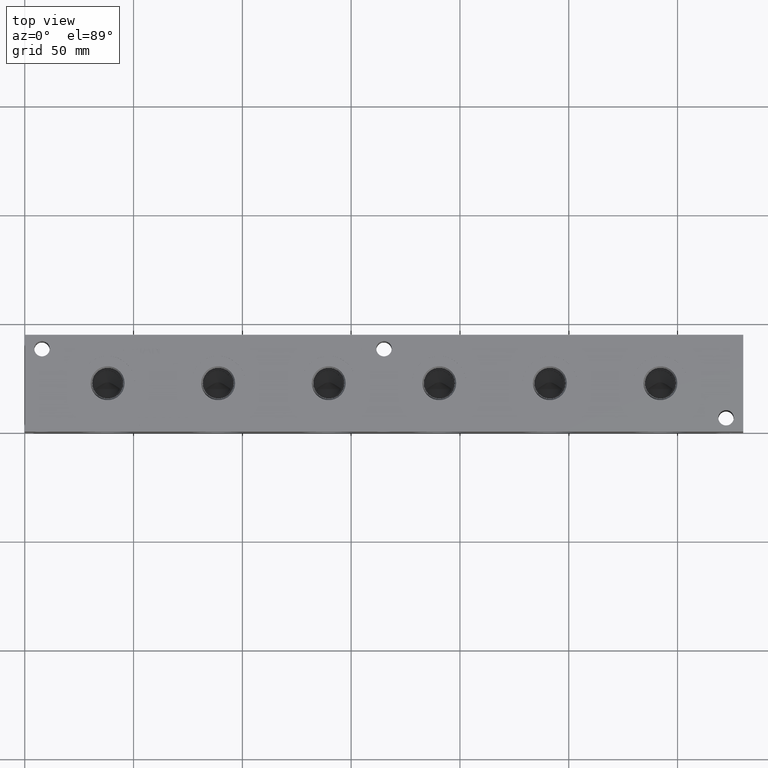
[diagram: clean part render]
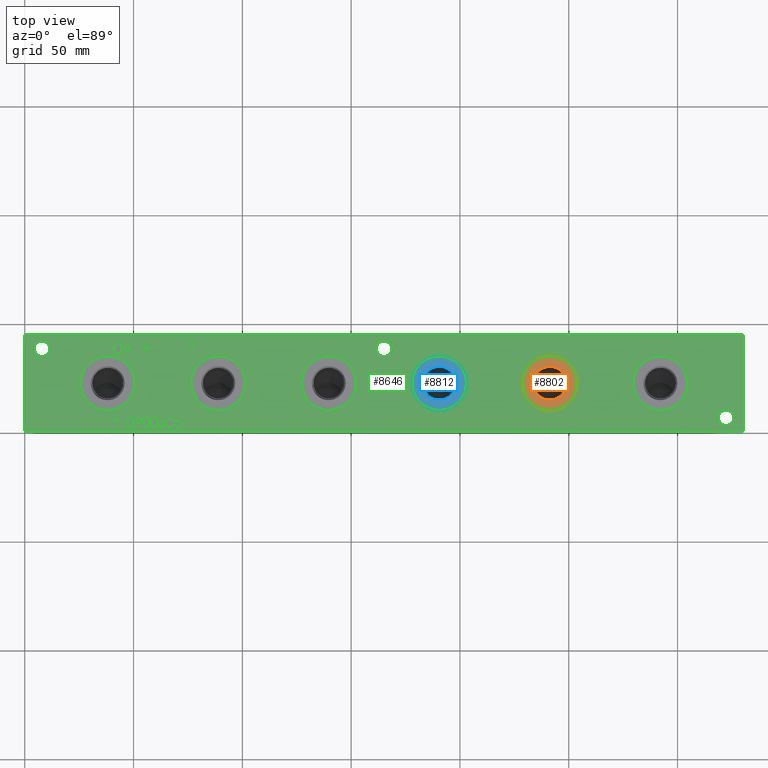
[diagram: same view with three faces highlighted in distinct colors, each labeled with its STEP entity id]
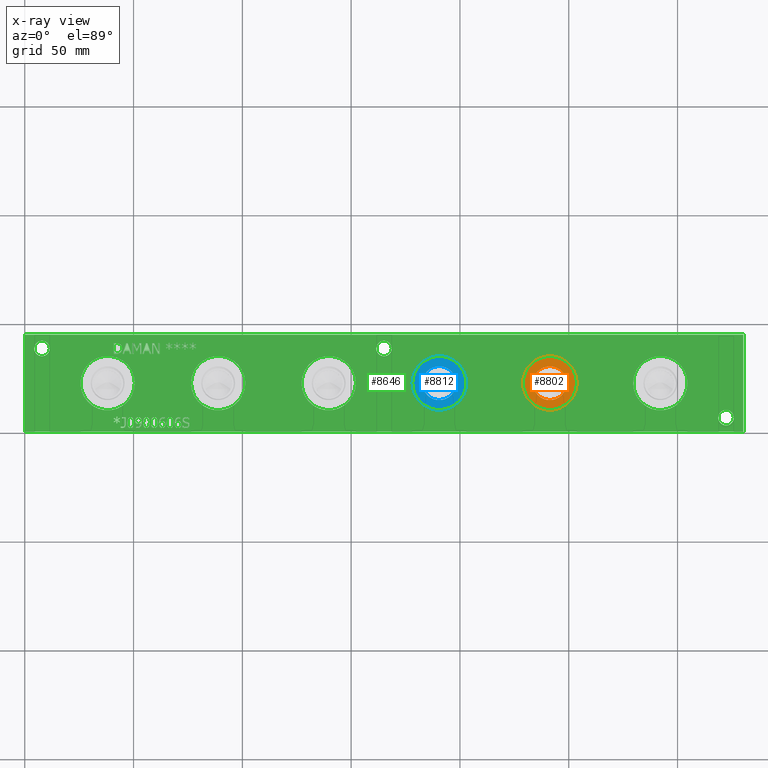
[diagram: x-ray of the same camera — body ghosted, the three highlighted faces saturated]
A machine part, top view with three faces highlighted in distinct colors.
The next image is the same camera in x-ray (body ghosted, the three faces saturated) — at least one of them is partly hidden behind the body in this view.
Their STEP definitions:

[orange] entity #8802 — the highlighted planar face has unit normal (0, 0, -1).
#192=CIRCLE('',#9182,12.5095);
#193=CIRCLE('',#9183,12.5095);
#194=CIRCLE('',#9185,7.79779999999999);
#195=CIRCLE('',#9186,7.79779999999999);
#436=FACE_BOUND('',#1739,.T.);
#1228=FACE_OUTER_BOUND('',#1738,.T.);
#1738=EDGE_LOOP('',(#7230,#7231));
#1739=EDGE_LOOP('',(#7232,#7233));
#3945=VERTEX_POINT('',#15066);
#3946=VERTEX_POINT('',#15068);
#3947=VERTEX_POINT('',#15072);
#3948=VERTEX_POINT('',#15073);
#5080=EDGE_CURVE('',#3945,#3946,#192,.T.);
#5081=EDGE_CURVE('',#3946,#3945,#193,.T.);
#5082=EDGE_CURVE('',#3947,#3948,#194,.T.);
#5083=EDGE_CURVE('',#3948,#3947,#195,.T.);
#7230=ORIENTED_EDGE('',*,*,#5081,.F.);
#7231=ORIENTED_EDGE('',*,*,#5080,.F.);
#7232=ORIENTED_EDGE('',*,*,#5082,.T.);
#7233=ORIENTED_EDGE('',*,*,#5083,.T.);
#8134=PLANE('',#9184);
#8802=ADVANCED_FACE('',(#1228,#436),#8134,.F.);
#9182=AXIS2_PLACEMENT_3D('',#15069,#10623,#10624);
#9183=AXIS2_PLACEMENT_3D('',#15070,#10625,#10626);
#9184=AXIS2_PLACEMENT_3D('',#15071,#10627,#10628);
#9185=AXIS2_PLACEMENT_3D('',#15074,#10629,#10630);
#9186=AXIS2_PLACEMENT_3D('',#15075,#10631,#10632);
#10623=DIRECTION('center_axis',(0.,0.,-1.));
#10624=DIRECTION('ref_axis',(1.,0.,0.));
#10625=DIRECTION('center_axis',(0.,0.,-1.));
#10626=DIRECTION('ref_axis',(1.,0.,0.));
#10627=DIRECTION('center_axis',(0.,0.,-1.));
#10628=DIRECTION('ref_axis',(-1.,0.,0.));
#10629=DIRECTION('center_axis',(0.,0.,-1.));
#10630=DIRECTION('ref_axis',(1.,0.,0.));
#10631=DIRECTION('center_axis',(0.,0.,-1.));
#10632=DIRECTION('ref_axis',(1.,0.,0.));
#15066=CARTESIAN_POINT('',(228.7905,22.225,43.6626));
#15068=CARTESIAN_POINT('',(253.8095,22.225,43.6626));
#15069=CARTESIAN_POINT('Origin',(241.3,22.225,43.6626));
#15070=CARTESIAN_POINT('Origin',(241.3,22.225,43.6626));
#15071=CARTESIAN_POINT('Origin',(249.0978,22.225,43.6626));
#15072=CARTESIAN_POINT('',(249.0978,22.225,43.6626));
#15073=CARTESIAN_POINT('',(233.5022,22.225,43.6626));
#15074=CARTESIAN_POINT('Origin',(241.3,22.225,43.6626));
#15075=CARTESIAN_POINT('Origin',(241.3,22.225,43.6626));

[blue] entity #8812 — the highlighted planar face has unit normal (0, 0, -1).
#212=CIRCLE('',#9212,12.5095);
#213=CIRCLE('',#9213,12.5095);
#214=CIRCLE('',#9215,7.79779999999999);
#215=CIRCLE('',#9216,7.79779999999999);
#438=FACE_BOUND('',#1751,.T.);
#1238=FACE_OUTER_BOUND('',#1750,.T.);
#1750=EDGE_LOOP('',(#7284,#7285));
#1751=EDGE_LOOP('',(#7286,#7287));
#3965=VERTEX_POINT('',#15124);
#3966=VERTEX_POINT('',#15126);
#3967=VERTEX_POINT('',#15130);
#3968=VERTEX_POINT('',#15131);
#5108=EDGE_CURVE('',#3965,#3966,#212,.T.);
#5109=EDGE_CURVE('',#3966,#3965,#213,.T.);
#5110=EDGE_CURVE('',#3967,#3968,#214,.T.);
#5111=EDGE_CURVE('',#3968,#3967,#215,.T.);
#7284=ORIENTED_EDGE('',*,*,#5109,.F.);
#7285=ORIENTED_EDGE('',*,*,#5108,.F.);
#7286=ORIENTED_EDGE('',*,*,#5110,.T.);
#7287=ORIENTED_EDGE('',*,*,#5111,.T.);
#8136=PLANE('',#9214);
#8812=ADVANCED_FACE('',(#1238,#438),#8136,.F.);
#9212=AXIS2_PLACEMENT_3D('',#15127,#10691,#10692);
#9213=AXIS2_PLACEMENT_3D('',#15128,#10693,#10694);
#9214=AXIS2_PLACEMENT_3D('',#15129,#10695,#10696);
#9215=AXIS2_PLACEMENT_3D('',#15132,#10697,#10698);
#9216=AXIS2_PLACEMENT_3D('',#15133,#10699,#10700);
#10691=DIRECTION('center_axis',(0.,0.,-1.));
#10692=DIRECTION('ref_axis',(1.,0.,0.));
#10693=DIRECTION('center_axis',(0.,0.,-1.));
#10694=DIRECTION('ref_axis',(1.,0.,0.));
#10695=DIRECTION('center_axis',(0.,0.,-1.));
#10696=DIRECTION('ref_axis',(-1.,0.,0.));
#10697=DIRECTION('center_axis',(0.,0.,-1.));
#10698=DIRECTION('ref_axis',(1.,0.,0.));
#10699=DIRECTION('center_axis',(0.,0.,-1.));
#10700=DIRECTION('ref_axis',(1.,0.,0.));
#15124=CARTESIAN_POINT('',(177.9905,22.225,43.6626));
#15126=CARTESIAN_POINT('',(203.0095,22.225,43.6626));
#15127=CARTESIAN_POINT('Origin',(190.5,22.225,43.6626));
#15128=CARTESIAN_POINT('Origin',(190.5,22.225,43.6626));
#15129=CARTESIAN_POINT('Origin',(198.2978,22.225,43.6626));
#15130=CARTESIAN_POINT('',(198.2978,22.225,43.6626));
#15131=CARTESIAN_POINT('',(182.7022,22.225,43.6626));
#15132=CARTESIAN_POINT('Origin',(190.5,22.225,43.6626));
#15133=CARTESIAN_POINT('Origin',(190.5,22.225,43.6626));

[green] entity #8646 — the highlighted planar face has unit normal (0, 0, 1).
#163=CIRCLE('',#9006,12.5095);
#164=CIRCLE('',#9007,12.5095);
#165=CIRCLE('',#9008,12.5095);
#166=CIRCLE('',#9009,12.5095);
#167=CIRCLE('',#9010,12.5095);
#168=CIRCLE('',#9011,12.5095);
#169=CIRCLE('',#9012,12.5095);
#170=CIRCLE('',#9013,12.5095);
#171=CIRCLE('',#9014,12.5095);
#172=CIRCLE('',#9015,12.5095);
#173=CIRCLE('',#9016,3.5687);
#174=CIRCLE('',#9017,3.5687);
#175=CIRCLE('',#9018,3.5687);
#176=CIRCLE('',#9019,3.5687);
#177=CIRCLE('',#9020,3.5687);
#178=CIRCLE('',#9021,3.5687);
#179=CIRCLE('',#9022,12.5095);
#180=CIRCLE('',#9023,12.5095);
#404=FACE_BOUND('',#1551,.T.);
#405=FACE_BOUND('',#1552,.T.);
#406=FACE_BOUND('',#1553,.T.);
#407=FACE_BOUND('',#1554,.T.);
#408=FACE_BOUND('',#1555,.T.);
#409=FACE_BOUND('',#1556,.T.);
#410=FACE_BOUND('',#1557,.T.);
#411=FACE_BOUND('',#1558,.T.);
#412=FACE_BOUND('',#1559,.T.);
#413=FACE_BOUND('',#1560,.T.);
#414=FACE_BOUND('',#1561,.T.);
#415=FACE_BOUND('',#1562,.T.);
#416=FACE_BOUND('',#1563,.T.);
#417=FACE_BOUND('',#1564,.T.);
#418=FACE_BOUND('',#1565,.T.);
#419=FACE_BOUND('',#1566,.T.);
#420=FACE_BOUND('',#1567,.T.);
#421=FACE_BOUND('',#1568,.T.);
#422=FACE_BOUND('',#1569,.T.);
#423=FACE_BOUND('',#1570,.T.);
#424=FACE_BOUND('',#1571,.T.);
#425=FACE_BOUND('',#1572,.T.);
#426=FACE_BOUND('',#1573,.T.);
#427=FACE_BOUND('',#1574,.T.);
#428=FACE_BOUND('',#1575,.T.);
#429=FACE_BOUND('',#1576,.T.);
#430=FACE_BOUND('',#1577,.T.);
#431=FACE_BOUND('',#1578,.T.);
#474=B_SPLINE_CURVE_WITH_KNOTS('',2,(#11509,#11510,#11511,#11512),
 .UNSPECIFIED.,.F.,.F.,(3,1,3),(0.,1.,2.),.UNSPECIFIED.);
#476=B_SPLINE_CURVE_WITH_KNOTS('',2,(#11528,#11529,#11530,#11531),
 .UNSPECIFIED.,.F.,.F.,(3,1,3),(0.,1.,2.),.UNSPECIFIED.);
#478=B_SPLINE_CURVE_WITH_KNOTS('',2,(#11547,#11548,#11549,#11550),
 .UNSPECIFIED.,.F.,.F.,(3,1,3),(0.,1.,2.),.UNSPECIFIED.);
#480=B_SPLINE_CURVE_WITH_KNOTS('',2,(#11578,#11579,#11580,#11581),
 .UNSPECIFIED.,.F.,.F.,(3,1,3),(0.,1.,2.),.UNSPECIFIED.);
#482=B_SPLINE_CURVE_WITH_KNOTS('',2,(#11596,#11597,#11598,#11599),
 .UNSPECIFIED.,.F.,.F.,(3,1,3),(0.,1.,2.),.UNSPECIFIED.);
#500=B_SPLINE_CURVE_WITH_KNOTS('',2,(#11876,#11877,#11878,#11879),
 .UNSPECIFIED.,.F.,.F.,(3,1,3),(0.,1.,2.),.UNSPECIFIED.);
#502=B_SPLINE_CURVE_WITH_KNOTS('',2,(#11897,#11898,#11899,#11900),
 .UNSPECIFIED.,.F.,.F.,(3,1,3),(0.,1.,2.),.UNSPECIFIED.);
#504=B_SPLINE_CURVE_WITH_KNOTS('',2,(#11916,#11917,#11918,#11919),
 .UNSPECIFIED.,.F.,.F.,(3,1,3),(0.,1.,2.),.UNSPECIFIED.);
#506=B_SPLINE_CURVE_WITH_KNOTS('',2,(#11934,#11935,#11936,#11937),
 .UNSPECIFIED.,.F.,.F.,(3,1,3),(0.,1.,2.),.UNSPECIFIED.);
#522=B_SPLINE_CURVE_WITH_KNOTS('',2,(#12086,#12087,#12088,#12089),
 .UNSPECIFIED.,.F.,.F.,(3,1,3),(0.,1.,2.),.UNSPECIFIED.);
#524=B_SPLINE_CURVE_WITH_KNOTS('',2,(#12107,#12108,#12109,#12110),
 .UNSPECIFIED.,.F.,.F.,(3,1,3),(0.,1.,2.),.UNSPECIFIED.);
#526=B_SPLINE_CURVE_WITH_KNOTS('',2,(#12126,#12127,#12128,#12129),
 .UNSPECIFIED.,.F.,.F.,(3,1,3),(0.,1.,2.),.UNSPECIFIED.);
#528=B_SPLINE_CURVE_WITH_KNOTS('',2,(#12145,#12146,#12147,#12148),
 .UNSPECIFIED.,.F.,.F.,(3,1,3),(0.,1.,2.),.UNSPECIFIED.);
#530=B_SPLINE_CURVE_WITH_KNOTS('',2,(#12164,#12165,#12166,#12167),
 .UNSPECIFIED.,.F.,.F.,(3,1,3),(0.,1.,2.),.UNSPECIFIED.);
#532=B_SPLINE_CURVE_WITH_KNOTS('',2,(#12195,#12196,#12197,#12198),
 .UNSPECIFIED.,.F.,.F.,(3,1,3),(0.,1.,2.),.UNSPECIFIED.);
#534=B_SPLINE_CURVE_WITH_KNOTS('',2,(#12214,#12215,#12216,#12217),
 .UNSPECIFIED.,.F.,.F.,(3,1,3),(0.,1.,2.),.UNSPECIFIED.);
#536=B_SPLINE_CURVE_WITH_KNOTS('',2,(#12233,#12234,#12235,#12236),
 .UNSPECIFIED.,.F.,.F.,(3,1,3),(0.,1.,2.),.UNSPECIFIED.);
#538=B_SPLINE_CURVE_WITH_KNOTS('',2,(#12252,#12253,#12254,#12255),
 .UNSPECIFIED.,.F.,.F.,(3,1,3),(0.,1.,2.),.UNSPECIFIED.);
#540=B_SPLINE_CURVE_WITH_KNOTS('',2,(#12271,#12272,#12273,#12274),
 .UNSPECIFIED.,.F.,.F.,(3,1,3),(0.,1.,2.),.UNSPECIFIED.);
#542=B_SPLINE_CURVE_WITH_KNOTS('',2,(#12290,#12291,#12292,#12293),
 .UNSPECIFIED.,.F.,.F.,(3,1,3),(0.,1.,2.),.UNSPECIFIED.);
#544=B_SPLINE_CURVE_WITH_KNOTS('',2,(#12308,#12309,#12310,#12311),
 .UNSPECIFIED.,.F.,.F.,(3,1,3),(0.,1.,2.),.UNSPECIFIED.);
#562=B_SPLINE_CURVE_WITH_KNOTS('',2,(#12479,#12480,#12481,#12482),
 .UNSPECIFIED.,.F.,.F.,(3,1,3),(0.,1.,2.),.UNSPECIFIED.);
#564=B_SPLINE_CURVE_WITH_KNOTS('',2,(#12500,#12501,#12502,#12503),
 .UNSPECIFIED.,.F.,.F.,(3,1,3),(0.,1.,2.),.UNSPECIFIED.);
#566=B_SPLINE_CURVE_WITH_KNOTS('',2,(#12519,#12520,#12521,#12522),
 .UNSPECIFIED.,.F.,.F.,(3,1,3),(0.,1.,2.),.UNSPECIFIED.);
#568=B_SPLINE_CURVE_WITH_KNOTS('',2,(#12537,#12538,#12539,#12540),
 .UNSPECIFIED.,.F.,.F.,(3,1,3),(0.,1.,2.),.UNSPECIFIED.);
#586=B_SPLINE_CURVE_WITH_KNOTS('',2,(#12708,#12709,#12710,#12711),
 .UNSPECIFIED.,.F.,.F.,(3,1,3),(0.,1.,2.),.UNSPECIFIED.);
#588=B_SPLINE_CURVE_WITH_KNOTS('',2,(#12729,#12730,#12731,#12732),
 .UNSPECIFIED.,.F.,.F.,(3,1,3),(0.,1.,2.),.UNSPECIFIED.);
#590=B_SPLINE_CURVE_WITH_KNOTS('',2,(#12748,#12749,#12750,#12751),
 .UNSPECIFIED.,.F.,.F.,(3,1,3),(0.,1.,2.),.UNSPECIFIED.);
#592=B_SPLINE_CURVE_WITH_KNOTS('',2,(#12766,#12767,#12768,#12769),
 .UNSPECIFIED.,.F.,.F.,(3,1,3),(0.,1.,2.),.UNSPECIFIED.);
#608=B_SPLINE_CURVE_WITH_KNOTS('',2,(#12918,#12919,#12920,#12921),
 .UNSPECIFIED.,.F.,.F.,(3,1,3),(0.,1.,2.),.UNSPECIFIED.);
#610=B_SPLINE_CURVE_WITH_KNOTS('',2,(#12939,#12940,#12941,#12942),
 .UNSPECIFIED.,.F.,.F.,(3,1,3),(0.,1.,2.),.UNSPECIFIED.);
#612=B_SPLINE_CURVE_WITH_KNOTS('',2,(#12958,#12959,#12960,#12961),
 .UNSPECIFIED.,.F.,.F.,(3,1,3),(0.,1.,2.),.UNSPECIFIED.);
#614=B_SPLINE_CURVE_WITH_KNOTS('',2,(#12977,#12978,#12979,#12980),
 .UNSPECIFIED.,.F.,.F.,(3,1,3),(0.,1.,2.),.UNSPECIFIED.);
#616=B_SPLINE_CURVE_WITH_KNOTS('',2,(#12996,#12997,#12998,#12999),
 .UNSPECIFIED.,.F.,.F.,(3,1,3),(0.,1.,2.),.UNSPECIFIED.);
#618=B_SPLINE_CURVE_WITH_KNOTS('',2,(#13027,#13028,#13029,#13030),
 .UNSPECIFIED.,.F.,.F.,(3,1,3),(0.,1.,2.),.UNSPECIFIED.);
#620=B_SPLINE_CURVE_WITH_KNOTS('',2,(#13046,#13047,#13048,#13049),
 .UNSPECIFIED.,.F.,.F.,(3,1,3),(0.,1.,2.),.UNSPECIFIED.);
#622=B_SPLINE_CURVE_WITH_KNOTS('',2,(#13065,#13066,#13067,#13068),
 .UNSPECIFIED.,.F.,.F.,(3,1,3),(0.,1.,2.),.UNSPECIFIED.);
#624=B_SPLINE_CURVE_WITH_KNOTS('',2,(#13084,#13085,#13086,#13087),
 .UNSPECIFIED.,.F.,.F.,(3,1,3),(0.,1.,2.),.UNSPECIFIED.);
#626=B_SPLINE_CURVE_WITH_KNOTS('',2,(#13103,#13104,#13105,#13106),
 .UNSPECIFIED.,.F.,.F.,(3,1,3),(0.,1.,2.),.UNSPECIFIED.);
#628=B_SPLINE_CURVE_WITH_KNOTS('',2,(#13122,#13123,#13124,#13125),
 .UNSPECIFIED.,.F.,.F.,(3,1,3),(0.,1.,2.),.UNSPECIFIED.);
#630=B_SPLINE_CURVE_WITH_KNOTS('',2,(#13140,#13141,#13142,#13143),
 .UNSPECIFIED.,.F.,.F.,(3,1,3),(0.,1.,2.),.UNSPECIFIED.);
#648=B_SPLINE_CURVE_WITH_KNOTS('',2,(#13311,#13312,#13313,#13314),
 .UNSPECIFIED.,.F.,.F.,(3,1,3),(0.,1.,2.),.UNSPECIFIED.);
#650=B_SPLINE_CURVE_WITH_KNOTS('',2,(#13332,#13333,#13334,#13335),
 .UNSPECIFIED.,.F.,.F.,(3,1,3),(0.,1.,2.),.UNSPECIFIED.);
#652=B_SPLINE_CURVE_WITH_KNOTS('',2,(#13351,#13352,#13353,#13354),
 .UNSPECIFIED.,.F.,.F.,(3,1,3),(0.,1.,2.),.UNSPECIFIED.);
#654=B_SPLINE_CURVE_WITH_KNOTS('',2,(#13369,#13370,#13371,#13372),
 .UNSPECIFIED.,.F.,.F.,(3,1,3),(0.,1.,2.),.UNSPECIFIED.);
#670=B_SPLINE_CURVE_WITH_KNOTS('',2,(#13521,#13522,#13523,#13524),
 .UNSPECIFIED.,.F.,.F.,(3,1,3),(0.,1.,2.),.UNSPECIFIED.);
#672=B_SPLINE_CURVE_WITH_KNOTS('',2,(#13542,#13543,#13544,#13545),
 .UNSPECIFIED.,.F.,.F.,(3,1,3),(0.,1.,2.),.UNSPECIFIED.);
#674=B_SPLINE_CURVE_WITH_KNOTS('',2,(#13561,#13562,#13563,#13564),
 .UNSPECIFIED.,.F.,.F.,(3,1,3),(0.,1.,2.),.UNSPECIFIED.);
#676=B_SPLINE_CURVE_WITH_KNOTS('',2,(#13580,#13581,#13582,#13583),
 .UNSPECIFIED.,.F.,.F.,(3,1,3),(0.,1.,2.),.UNSPECIFIED.);
#678=B_SPLINE_CURVE_WITH_KNOTS('',2,(#13599,#13600,#13601,#13602),
 .UNSPECIFIED.,.F.,.F.,(3,1,3),(0.,1.,2.),.UNSPECIFIED.);
#680=B_SPLINE_CURVE_WITH_KNOTS('',2,(#13630,#13631,#13632,#13633),
 .UNSPECIFIED.,.F.,.F.,(3,1,3),(0.,1.,2.),.UNSPECIFIED.);
#682=B_SPLINE_CURVE_WITH_KNOTS('',2,(#13649,#13650,#13651,#13652),
 .UNSPECIFIED.,.F.,.F.,(3,1,3),(0.,1.,2.),.UNSPECIFIED.);
#684=B_SPLINE_CURVE_WITH_KNOTS('',2,(#13668,#13669,#13670,#13671),
 .UNSPECIFIED.,.F.,.F.,(3,1,3),(0.,1.,2.),.UNSPECIFIED.);
#686=B_SPLINE_CURVE_WITH_KNOTS('',2,(#13687,#13688,#13689,#13690),
 .UNSPECIFIED.,.F.,.F.,(3,1,3),(0.,1.,2.),.UNSPECIFIED.);
#688=B_SPLINE_CURVE_WITH_KNOTS('',2,(#13706,#13707,#13708,#13709),
 .UNSPECIFIED.,.F.,.F.,(3,1,3),(0.,1.,2.),.UNSPECIFIED.);
#690=B_SPLINE_CURVE_WITH_KNOTS('',2,(#13725,#13726,#13727,#13728),
 .UNSPECIFIED.,.F.,.F.,(3,1,3),(0.,1.,2.),.UNSPECIFIED.);
#692=B_SPLINE_CURVE_WITH_KNOTS('',2,(#13743,#13744,#13745,#13746),
 .UNSPECIFIED.,.F.,.F.,(3,1,3),(0.,1.,2.),.UNSPECIFIED.);
#694=B_SPLINE_CURVE_WITH_KNOTS('',2,(#13762,#13763,#13764,#13765),
 .UNSPECIFIED.,.F.,.F.,(3,1,3),(0.,1.,2.),.UNSPECIFIED.);
#696=B_SPLINE_CURVE_WITH_KNOTS('',2,(#13783,#13784,#13785,#13786),
 .UNSPECIFIED.,.F.,.F.,(3,1,3),(0.,1.,2.),.UNSPECIFIED.);
#698=B_SPLINE_CURVE_WITH_KNOTS('',2,(#13802,#13803,#13804,#13805),
 .UNSPECIFIED.,.F.,.F.,(3,1,3),(0.,1.,2.),.UNSPECIFIED.);
#700=B_SPLINE_CURVE_WITH_KNOTS('',2,(#13821,#13822,#13823,#13824),
 .UNSPECIFIED.,.F.,.F.,(3,1,3),(0.,1.,2.),.UNSPECIFIED.);
#702=B_SPLINE_CURVE_WITH_KNOTS('',2,(#13840,#13841,#13842,#13843),
 .UNSPECIFIED.,.F.,.F.,(3,1,3),(0.,1.,2.),.UNSPECIFIED.);
#704=B_SPLINE_CURVE_WITH_KNOTS('',2,(#13859,#13860,#13861,#13862),
 .UNSPECIFIED.,.F.,.F.,(3,1,3),(0.,1.,2.),.UNSPECIFIED.);
#706=B_SPLINE_CURVE_WITH_KNOTS('',2,(#13878,#13879,#13880,#13881),
 .UNSPECIFIED.,.F.,.F.,(3,1,3),(0.,1.,2.),.UNSPECIFIED.);
#708=B_SPLINE_CURVE_WITH_KNOTS('',2,(#13909,#13910,#13911,#13912),
 .UNSPECIFIED.,.F.,.F.,(3,1,3),(0.,1.,2.),.UNSPECIFIED.);
#710=B_SPLINE_CURVE_WITH_KNOTS('',2,(#13928,#13929,#13930,#13931),
 .UNSPECIFIED.,.F.,.F.,(3,1,3),(0.,1.,2.),.UNSPECIFIED.);
#712=B_SPLINE_CURVE_WITH_KNOTS('',2,(#13947,#13948,#13949,#13950),
 .UNSPECIFIED.,.F.,.F.,(3,1,3),(0.,1.,2.),.UNSPECIFIED.);
#714=B_SPLINE_CURVE_WITH_KNOTS('',2,(#13966,#13967,#13968,#13969),
 .UNSPECIFIED.,.F.,.F.,(3,1,3),(0.,1.,2.),.UNSPECIFIED.);
#716=B_SPLINE_CURVE_WITH_KNOTS('',2,(#13985,#13986,#13987,#13988),
 .UNSPECIFIED.,.F.,.F.,(3,1,3),(0.,1.,2.),.UNSPECIFIED.);
#718=B_SPLINE_CURVE_WITH_KNOTS('',2,(#14004,#14005,#14006,#14007),
 .UNSPECIFIED.,.F.,.F.,(3,1,3),(0.,1.,2.),.UNSPECIFIED.);
#720=B_SPLINE_CURVE_WITH_KNOTS('',2,(#14023,#14024,#14025,#14026),
 .UNSPECIFIED.,.F.,.F.,(3,1,3),(0.,1.,2.),.UNSPECIFIED.);
#722=B_SPLINE_CURVE_WITH_KNOTS('',2,(#14042,#14043,#14044,#14045),
 .UNSPECIFIED.,.F.,.F.,(3,1,3),(0.,1.,2.),.UNSPECIFIED.);
#724=B_SPLINE_CURVE_WITH_KNOTS('',2,(#14072,#14073,#14074,#14075),
 .UNSPECIFIED.,.F.,.F.,(3,1,3),(0.,1.,2.),.UNSPECIFIED.);
#726=B_SPLINE_CURVE_WITH_KNOTS('',2,(#14206,#14207,#14208,#14209),
 .UNSPECIFIED.,.F.,.F.,(3,1,3),(0.,1.,2.),.UNSPECIFIED.);
#727=B_SPLINE_CURVE_WITH_KNOTS('',2,(#14211,#14212,#14213,#14214),
 .UNSPECIFIED.,.F.,.F.,(3,1,3),(0.,1.,2.),.UNSPECIFIED.);
#728=B_SPLINE_CURVE_WITH_KNOTS('',2,(#14216,#14217,#14218,#14219),
 .UNSPECIFIED.,.F.,.F.,(3,1,3),(0.,1.,2.),.UNSPECIFIED.);
#729=B_SPLINE_CURVE_WITH_KNOTS('',2,(#14226,#14227,#14228,#14229),
 .UNSPECIFIED.,.F.,.F.,(3,1,3),(0.,1.,2.),.UNSPECIFIED.);
#1072=FACE_OUTER_BOUND('',#1550,.T.);
#1550=EDGE_LOOP('',(#6231,#6232,#6233,#6234));
#1551=EDGE_LOOP('',(#6235,#6236,#6237,#6238,#6239,#6240,#6241,#6242,#6243,
#6244,#6245,#6246,#6247,#6248,#6249,#6250,#6251,#6252));
#1552=EDGE_LOOP('',(#6253,#6254,#6255,#6256,#6257,#6258,#6259,#6260,#6261,
#6262,#6263,#6264,#6265,#6266,#6267,#6268,#6269,#6270));
#1553=EDGE_LOOP('',(#6271,#6272,#6273,#6274,#6275,#6276,#6277,#6278,#6279,
#6280,#6281,#6282,#6283));
#1554=EDGE_LOOP('',(#6284,#6285,#6286,#6287,#6288,#6289,#6290,#6291));
#1555=EDGE_LOOP('',(#6292,#6293,#6294,#6295,#6296,#6297,#6298));
#1556=EDGE_LOOP('',(#6299,#6300,#6301,#6302,#6303,#6304,#6305,#6306));
#1557=EDGE_LOOP('',(#6307,#6308,#6309,#6310,#6311,#6312,#6313,#6314,#6315,
#6316));
#1558=EDGE_LOOP('',(#6317,#6318,#6319,#6320,#6321,#6322,#6323,#6324,#6325,
#6326,#6327,#6328,#6329,#6330,#6331,#6332,#6333,#6334));
#1559=EDGE_LOOP('',(#6335,#6336,#6337,#6338,#6339,#6340,#6341,#6342,#6343,
#6344,#6345,#6346,#6347,#6348,#6349,#6350,#6351,#6352));
#1560=EDGE_LOOP('',(#6353,#6354));
#1561=EDGE_LOOP('',(#6355,#6356));
#1562=EDGE_LOOP('',(#6357,#6358));
#1563=EDGE_LOOP('',(#6359,#6360));
#1564=EDGE_LOOP('',(#6361,#6362));
#1565=EDGE_LOOP('',(#6363,#6364));
#1566=EDGE_LOOP('',(#6365,#6366));
#1567=EDGE_LOOP('',(#6367,#6368));
#1568=EDGE_LOOP('',(#6369,#6370));
#1569=EDGE_LOOP('',(#6371,#6372,#6373,#6374,#6375,#6376,#6377,#6378,#6379,
#6380,#6381,#6382,#6383,#6384,#6385,#6386,#6387,#6388,#6389,#6390));
#1570=EDGE_LOOP('',(#6391,#6392,#6393,#6394,#6395,#6396,#6397,#6398,#6399,
#6400,#6401,#6402,#6403,#6404));
#1571=EDGE_LOOP('',(#6405,#6406,#6407,#6408));
#1572=EDGE_LOOP('',(#6409,#6410,#6411,#6412,#6413,#6414,#6415,#6416,#6417,
#6418,#6419,#6420,#6421,#6422));
#1573=EDGE_LOOP('',(#6423,#6424,#6425,#6426));
#1574=EDGE_LOOP('',(#6427,#6428,#6429,#6430));
#1575=EDGE_LOOP('',(#6431,#6432,#6433,#6434,#6435,#6436,#6437,#6438,#6439,
#6440,#6441,#6442,#6443,#6444));
#1576=EDGE_LOOP('',(#6445,#6446,#6447,#6448));
#1577=EDGE_LOOP('',(#6449,#6450,#6451,#6452,#6453,#6454,#6455,#6456,#6457,
#6458,#6459,#6460,#6461,#6462,#6463,#6464,#6465,#6466));
#1578=EDGE_LOOP('',(#6467,#6468,#6469,#6470,#6471,#6472,#6473,#6474,#6475,
#6476,#6477,#6478));
#1920=LINE('',#11470,#2624);
#1924=LINE('',#11478,#2628);
#1927=LINE('',#11484,#2631);
#1930=LINE('',#11490,#2634);
#1933=LINE('',#11496,#2637);
#1939=LINE('',#11559,#2643);
#1942=LINE('',#11565,#2646);
#1946=LINE('',#11608,#2650);
#1950=LINE('',#11616,#2654);
#1953=LINE('',#11622,#2657);
#1956=LINE('',#11628,#2660);
#1959=LINE('',#11634,#2663);
#1962=LINE('',#11640,#2666);
#1965=LINE('',#11646,#2669);
#1968=LINE('',#11652,#2672);
#1971=LINE('',#11658,#2675);
#1974=LINE('',#11664,#2678);
#1977=LINE('',#11670,#2681);
#1980=LINE('',#11676,#2684);
#1983=LINE('',#11682,#2687);
#1986=LINE('',#11688,#2690);
#1989=LINE('',#11694,#2693);
#1992=LINE('',#11700,#2696);
#1995=LINE('',#11706,#2699);
#1998=LINE('',#11711,#2702);
#2025=LINE('',#12176,#2729);
#2028=LINE('',#12182,#2732);
#2074=LINE('',#13008,#2778);
#2077=LINE('',#13014,#2781);
#2111=LINE('',#13611,#2815);
#2114=LINE('',#13617,#2818);
#2131=LINE('',#13890,#2835);
#2134=LINE('',#13896,#2838);
#2145=LINE('',#14054,#2849);
#2148=LINE('',#14060,#2852);
#2151=LINE('',#14084,#2855);
#2152=LINE('',#14086,#2856);
#2153=LINE('',#14088,#2857);
#2154=LINE('',#14089,#2858);
#2155=LINE('',#14092,#2859);
#2156=LINE('',#14094,#2860);
#2157=LINE('',#14096,#2861);
#2158=LINE('',#14098,#2862);
#2159=LINE('',#14100,#2863);
#2160=LINE('',#14102,#2864);
#2161=LINE('',#14104,#2865);
#2162=LINE('',#14106,#2866);
#2163=LINE('',#14108,#2867);
#2164=LINE('',#14110,#2868);
#2165=LINE('',#14112,#2869);
#2166=LINE('',#14114,#2870);
#2167=LINE('',#14116,#2871);
#2168=LINE('',#14118,#2872);
#2169=LINE('',#14120,#2873);
#2170=LINE('',#14122,#2874);
#2171=LINE('',#14124,#2875);
#2172=LINE('',#14125,#2876);
#2173=LINE('',#14128,#2877);
#2174=LINE('',#14130,#2878);
#2175=LINE('',#14132,#2879);
#2176=LINE('',#14134,#2880);
#2177=LINE('',#14136,#2881);
#2178=LINE('',#14138,#2882);
#2179=LINE('',#14140,#2883);
#2180=LINE('',#14142,#2884);
#2181=LINE('',#14144,#2885);
#2182=LINE('',#14146,#2886);
#2183=LINE('',#14148,#2887);
#2184=LINE('',#14150,#2888);
#2185=LINE('',#14152,#2889);
#2186=LINE('',#14154,#2890);
#2187=LINE('',#14156,#2891);
#2188=LINE('',#14158,#2892);
#2189=LINE('',#14160,#2893);
#2190=LINE('',#14161,#2894);
#2191=LINE('',#14164,#2895);
#2192=LINE('',#14166,#2896);
#2193=LINE('',#14168,#2897);
#2194=LINE('',#14170,#2898);
#2195=LINE('',#14172,#2899);
#2196=LINE('',#14174,#2900);
#2197=LINE('',#14176,#2901);
#2198=LINE('',#14178,#2902);
#2199=LINE('',#14180,#2903);
#2200=LINE('',#14182,#2904);
#2201=LINE('',#14184,#2905);
#2202=LINE('',#14186,#2906);
#2203=LINE('',#14187,#2907);
#2204=LINE('',#14190,#2908);
#2205=LINE('',#14192,#2909);
#2206=LINE('',#14194,#2910);
#2207=LINE('',#14196,#2911);
#2208=LINE('',#14198,#2912);
#2209=LINE('',#14200,#2913);
#2210=LINE('',#14202,#2914);
#2211=LINE('',#14203,#2915);
#2212=LINE('',#14221,#2916);
#2213=LINE('',#14223,#2917);
#2214=LINE('',#14225,#2918);
#2215=LINE('',#14232,#2919);
#2216=LINE('',#14234,#2920);
#2217=LINE('',#14236,#2921);
#2218=LINE('',#14238,#2922);
#2219=LINE('',#14240,#2923);
#2220=LINE('',#14242,#2924);
#2221=LINE('',#14244,#2925);
#2222=LINE('',#14245,#2926);
#2223=LINE('',#14248,#2927);
#2224=LINE('',#14250,#2928);
#2225=LINE('',#14252,#2929);
#2226=LINE('',#14254,#2930);
#2227=LINE('',#14256,#2931);
#2228=LINE('',#14258,#2932);
#2229=LINE('',#14260,#2933);
#2230=LINE('',#14262,#2934);
#2231=LINE('',#14264,#2935);
#2232=LINE('',#14265,#2936);
#2233=LINE('',#14268,#2937);
#2234=LINE('',#14270,#2938);
#2235=LINE('',#14272,#2939);
#2236=LINE('',#14274,#2940);
#2237=LINE('',#14276,#2941);
#2238=LINE('',#14278,#2942);
#2239=LINE('',#14280,#2943);
#2240=LINE('',#14282,#2944);
#2241=LINE('',#14284,#2945);
#2242=LINE('',#14286,#2946);
#2243=LINE('',#14288,#2947);
#2244=LINE('',#14290,#2948);
#2245=LINE('',#14292,#2949);
#2246=LINE('',#14294,#2950);
#2247=LINE('',#14296,#2951);
#2248=LINE('',#14298,#2952);
#2249=LINE('',#14300,#2953);
#2250=LINE('',#14301,#2954);
#2251=LINE('',#14304,#2955);
#2252=LINE('',#14306,#2956);
#2253=LINE('',#14308,#2957);
#2254=LINE('',#14310,#2958);
#2255=LINE('',#14312,#2959);
#2256=LINE('',#14314,#2960);
#2257=LINE('',#14316,#2961);
#2258=LINE('',#14318,#2962);
#2259=LINE('',#14320,#2963);
#2260=LINE('',#14322,#2964);
#2261=LINE('',#14324,#2965);
#2262=LINE('',#14326,#2966);
#2263=LINE('',#14328,#2967);
#2264=LINE('',#14330,#2968);
#2265=LINE('',#14332,#2969);
#2266=LINE('',#14334,#2970);
#2267=LINE('',#14336,#2971);
#2268=LINE('',#14337,#2972);
#2624=VECTOR('',#9564,10.);
#2628=VECTOR('',#9570,10.);
#2631=VECTOR('',#9575,10.);
#2634=VECTOR('',#9580,10.);
#2637=VECTOR('',#9585,10.);
#2643=VECTOR('',#9593,10.);
#2646=VECTOR('',#9598,10.);
#2650=VECTOR('',#9606,10.);
#2654=VECTOR('',#9612,10.);
#2657=VECTOR('',#9617,10.);
#2660=VECTOR('',#9622,10.);
#2663=VECTOR('',#9627,10.);
#2666=VECTOR('',#9632,10.);
#2669=VECTOR('',#9637,10.);
#2672=VECTOR('',#9642,10.);
#2675=VECTOR('',#9647,10.);
#2678=VECTOR('',#9652,10.);
#2681=VECTOR('',#9657,10.);
#2684=VECTOR('',#9662,10.);
#2687=VECTOR('',#9667,10.);
#2690=VECTOR('',#9672,10.);
#2693=VECTOR('',#9677,10.);
#2696=VECTOR('',#9682,10.);
#2699=VECTOR('',#9687,10.);
#2702=VECTOR('',#9692,10.);
#2729=VECTOR('',#9725,10.);
#2732=VECTOR('',#9730,10.);
#2778=VECTOR('',#9784,10.);
#2781=VECTOR('',#9789,10.);
#2815=VECTOR('',#9829,10.);
#2818=VECTOR('',#9834,10.);
#2835=VECTOR('',#9855,10.);
#2838=VECTOR('',#9860,10.);
#2849=VECTOR('',#9873,10.);
#2852=VECTOR('',#9878,10.);
#2855=VECTOR('',#9885,10.);
#2856=VECTOR('',#9886,10.);
#2857=VECTOR('',#9887,10.);
#2858=VECTOR('',#9888,10.);
#2859=VECTOR('',#9889,10.);
#2860=VECTOR('',#9890,10.);
#2861=VECTOR('',#9891,10.);
#2862=VECTOR('',#9892,10.);
#2863=VECTOR('',#9893,10.);
#2864=VECTOR('',#9894,10.);
#2865=VECTOR('',#9895,10.);
#2866=VECTOR('',#9896,10.);
#2867=VECTOR('',#9897,10.);
#2868=VECTOR('',#9898,10.);
#2869=VECTOR('',#9899,10.);
#2870=VECTOR('',#9900,10.);
#2871=VECTOR('',#9901,10.);
#2872=VECTOR('',#9902,10.);
#2873=VECTOR('',#9903,10.);
#2874=VECTOR('',#9904,10.);
#2875=VECTOR('',#9905,10.);
#2876=VECTOR('',#9906,10.);
#2877=VECTOR('',#9907,10.);
#2878=VECTOR('',#9908,10.);
#2879=VECTOR('',#9909,10.);
#2880=VECTOR('',#9910,10.);
#2881=VECTOR('',#9911,10.);
#2882=VECTOR('',#9912,10.);
#2883=VECTOR('',#9913,10.);
#2884=VECTOR('',#9914,10.);
#2885=VECTOR('',#9915,10.);
#2886=VECTOR('',#9916,10.);
#2887=VECTOR('',#9917,10.);
#2888=VECTOR('',#9918,10.);
#2889=VECTOR('',#9919,10.);
#2890=VECTOR('',#9920,10.);
#2891=VECTOR('',#9921,10.);
#2892=VECTOR('',#9922,10.);
#2893=VECTOR('',#9923,10.);
#2894=VECTOR('',#9924,10.);
#2895=VECTOR('',#9925,10.);
#2896=VECTOR('',#9926,10.);
#2897=VECTOR('',#9927,10.);
#2898=VECTOR('',#9928,10.);
#2899=VECTOR('',#9929,10.);
#2900=VECTOR('',#9930,10.);
#2901=VECTOR('',#9931,10.);
#2902=VECTOR('',#9932,10.);
#2903=VECTOR('',#9933,10.);
#2904=VECTOR('',#9934,10.);
#2905=VECTOR('',#9935,10.);
#2906=VECTOR('',#9936,10.);
#2907=VECTOR('',#9937,10.);
#2908=VECTOR('',#9938,10.);
#2909=VECTOR('',#9939,10.);
#2910=VECTOR('',#9940,10.);
#2911=VECTOR('',#9941,10.);
#2912=VECTOR('',#9942,10.);
#2913=VECTOR('',#9943,10.);
#2914=VECTOR('',#9944,10.);
#2915=VECTOR('',#9945,10.);
#2916=VECTOR('',#9946,10.);
#2917=VECTOR('',#9947,10.);
#2918=VECTOR('',#9948,10.);
#2919=VECTOR('',#9949,10.);
#2920=VECTOR('',#9950,10.);
#2921=VECTOR('',#9951,10.);
#2922=VECTOR('',#9952,10.);
#2923=VECTOR('',#9953,10.);
#2924=VECTOR('',#9954,10.);
#2925=VECTOR('',#9955,10.);
#2926=VECTOR('',#9956,10.);
#2927=VECTOR('',#9957,10.);
#2928=VECTOR('',#9958,10.);
#2929=VECTOR('',#9959,10.);
#2930=VECTOR('',#9960,10.);
#2931=VECTOR('',#9961,10.);
#2932=VECTOR('',#9962,10.);
#2933=VECTOR('',#9963,10.);
#2934=VECTOR('',#9964,10.);
#2935=VECTOR('',#9965,10.);
#2936=VECTOR('',#9966,10.);
#2937=VECTOR('',#9967,10.);
#2938=VECTOR('',#9968,10.);
#2939=VECTOR('',#9969,10.);
#2940=VECTOR('',#9970,10.);
#2941=VECTOR('',#9971,10.);
#2942=VECTOR('',#9972,10.);
#2943=VECTOR('',#9973,10.);
#2944=VECTOR('',#9974,10.);
#2945=VECTOR('',#9975,10.);
#2946=VECTOR('',#9976,10.);
#2947=VECTOR('',#9977,10.);
#2948=VECTOR('',#9978,10.);
#2949=VECTOR('',#9979,10.);
#2950=VECTOR('',#9980,10.);
#2951=VECTOR('',#9981,10.);
#2952=VECTOR('',#9982,10.);
#2953=VECTOR('',#9983,10.);
#2954=VECTOR('',#9984,10.);
#2955=VECTOR('',#9985,10.);
#2956=VECTOR('',#9986,10.);
#2957=VECTOR('',#9987,10.);
#2958=VECTOR('',#9988,10.);
#2959=VECTOR('',#9989,10.);
#2960=VECTOR('',#9990,10.);
#2961=VECTOR('',#9991,10.);
#2962=VECTOR('',#9992,10.);
#2963=VECTOR('',#9993,10.);
#2964=VECTOR('',#9994,10.);
#2965=VECTOR('',#9995,10.);
#2966=VECTOR('',#9996,10.);
#2967=VECTOR('',#9997,10.);
#2968=VECTOR('',#9998,10.);
#2969=VECTOR('',#9999,10.);
#2970=VECTOR('',#10000,10.);
#2971=VECTOR('',#10001,10.);
#2972=VECTOR('',#10002,10.);
#3328=VERTEX_POINT('',#11468);
#3329=VERTEX_POINT('',#11469);
#3332=VERTEX_POINT('',#11477);
#3334=VERTEX_POINT('',#11483);
#3336=VERTEX_POINT('',#11489);
#3338=VERTEX_POINT('',#11495);
#3340=VERTEX_POINT('',#11508);
#3342=VERTEX_POINT('',#11527);
#3344=VERTEX_POINT('',#11546);
#3346=VERTEX_POINT('',#11558);
#3348=VERTEX_POINT('',#11564);
#3350=VERTEX_POINT('',#11577);
#3352=VERTEX_POINT('',#11606);
#3353=VERTEX_POINT('',#11607);
#3356=VERTEX_POINT('',#11615);
#3358=VERTEX_POINT('',#11621);
#3360=VERTEX_POINT('',#11627);
#3362=VERTEX_POINT('',#11633);
#3364=VERTEX_POINT('',#11639);
#3366=VERTEX_POINT('',#11645);
#3368=VERTEX_POINT('',#11651);
#3370=VERTEX_POINT('',#11657);
#3372=VERTEX_POINT('',#11663);
#3374=VERTEX_POINT('',#11669);
#3376=VERTEX_POINT('',#11675);
#3378=VERTEX_POINT('',#11681);
#3380=VERTEX_POINT('',#11687);
#3382=VERTEX_POINT('',#11693);
#3384=VERTEX_POINT('',#11699);
#3386=VERTEX_POINT('',#11705);
#3404=VERTEX_POINT('',#11874);
#3405=VERTEX_POINT('',#11875);
#3408=VERTEX_POINT('',#11896);
#3410=VERTEX_POINT('',#11915);
#3426=VERTEX_POINT('',#12084);
#3427=VERTEX_POINT('',#12085);
#3430=VERTEX_POINT('',#12106);
#3432=VERTEX_POINT('',#12125);
#3434=VERTEX_POINT('',#12144);
#3436=VERTEX_POINT('',#12163);
#3438=VERTEX_POINT('',#12175);
#3440=VERTEX_POINT('',#12181);
#3442=VERTEX_POINT('',#12194);
#3444=VERTEX_POINT('',#12213);
#3446=VERTEX_POINT('',#12232);
#3448=VERTEX_POINT('',#12251);
#3450=VERTEX_POINT('',#12270);
#3452=VERTEX_POINT('',#12289);
#3470=VERTEX_POINT('',#12477);
#3471=VERTEX_POINT('',#12478);
#3474=VERTEX_POINT('',#12499);
#3476=VERTEX_POINT('',#12518);
#3494=VERTEX_POINT('',#12706);
#3495=VERTEX_POINT('',#12707);
#3498=VERTEX_POINT('',#12728);
#3500=VERTEX_POINT('',#12747);
#3516=VERTEX_POINT('',#12916);
#3517=VERTEX_POINT('',#12917);
#3520=VERTEX_POINT('',#12938);
#3522=VERTEX_POINT('',#12957);
#3524=VERTEX_POINT('',#12976);
#3526=VERTEX_POINT('',#12995);
#3528=VERTEX_POINT('',#13007);
#3530=VERTEX_POINT('',#13013);
#3532=VERTEX_POINT('',#13026);
#3534=VERTEX_POINT('',#13045);
#3536=VERTEX_POINT('',#13064);
#3538=VERTEX_POINT('',#13083);
#3540=VERTEX_POINT('',#13102);
#3542=VERTEX_POINT('',#13121);
#3560=VERTEX_POINT('',#13309);
#3561=VERTEX_POINT('',#13310);
#3564=VERTEX_POINT('',#13331);
#3566=VERTEX_POINT('',#13350);
#3582=VERTEX_POINT('',#13519);
#3583=VERTEX_POINT('',#13520);
#3586=VERTEX_POINT('',#13541);
#3588=VERTEX_POINT('',#13560);
#3590=VERTEX_POINT('',#13579);
#3592=VERTEX_POINT('',#13598);
#3594=VERTEX_POINT('',#13610);
#3596=VERTEX_POINT('',#13616);
#3598=VERTEX_POINT('',#13629);
#3600=VERTEX_POINT('',#13648);
#3602=VERTEX_POINT('',#13667);
#3604=VERTEX_POINT('',#13686);
#3606=VERTEX_POINT('',#13705);
#3608=VERTEX_POINT('',#13724);
#3610=VERTEX_POINT('',#13760);
#3611=VERTEX_POINT('',#13761);
#3614=VERTEX_POINT('',#13782);
#3616=VERTEX_POINT('',#13801);
#3618=VERTEX_POINT('',#13820);
#3620=VERTEX_POINT('',#13839);
#3622=VERTEX_POINT('',#13858);
#3624=VERTEX_POINT('',#13877);
#3626=VERTEX_POINT('',#13889);
#3628=VERTEX_POINT('',#13895);
#3630=VERTEX_POINT('',#13908);
#3632=VERTEX_POINT('',#13927);
#3634=VERTEX_POINT('',#13946);
#3636=VERTEX_POINT('',#13965);
#3638=VERTEX_POINT('',#13984);
#3640=VERTEX_POINT('',#14003);
#3642=VERTEX_POINT('',#14022);
#3644=VERTEX_POINT('',#14041);
#3646=VERTEX_POINT('',#14053);
#3648=VERTEX_POINT('',#14059);
#3650=VERTEX_POINT('',#14082);
#3651=VERTEX_POINT('',#14083);
#3652=VERTEX_POINT('',#14085);
#3653=VERTEX_POINT('',#14087);
#3654=VERTEX_POINT('',#14090);
#3655=VERTEX_POINT('',#14091);
#3656=VERTEX_POINT('',#14093);
#3657=VERTEX_POINT('',#14095);
#3658=VERTEX_POINT('',#14097);
#3659=VERTEX_POINT('',#14099);
#3660=VERTEX_POINT('',#14101);
#3661=VERTEX_POINT('',#14103);
#3662=VERTEX_POINT('',#14105);
#3663=VERTEX_POINT('',#14107);
#3664=VERTEX_POINT('',#14109);
#3665=VERTEX_POINT('',#14111);
#3666=VERTEX_POINT('',#14113);
#3667=VERTEX_POINT('',#14115);
#3668=VERTEX_POINT('',#14117);
#3669=VERTEX_POINT('',#14119);
#3670=VERTEX_POINT('',#14121);
#3671=VERTEX_POINT('',#14123);
#3672=VERTEX_POINT('',#14126);
#3673=VERTEX_POINT('',#14127);
#3674=VERTEX_POINT('',#14129);
#3675=VERTEX_POINT('',#14131);
#3676=VERTEX_POINT('',#14133);
#3677=VERTEX_POINT('',#14135);
#3678=VERTEX_POINT('',#14137);
#3679=VERTEX_POINT('',#14139);
#3680=VERTEX_POINT('',#14141);
#3681=VERTEX_POINT('',#14143);
#3682=VERTEX_POINT('',#14145);
#3683=VERTEX_POINT('',#14147);
#3684=VERTEX_POINT('',#14149);
#3685=VERTEX_POINT('',#14151);
#3686=VERTEX_POINT('',#14153);
#3687=VERTEX_POINT('',#14155);
#3688=VERTEX_POINT('',#14157);
#3689=VERTEX_POINT('',#14159);
#3690=VERTEX_POINT('',#14162);
#3691=VERTEX_POINT('',#14163);
#3692=VERTEX_POINT('',#14165);
#3693=VERTEX_POINT('',#14167);
#3694=VERTEX_POINT('',#14169);
#3695=VERTEX_POINT('',#14171);
#3696=VERTEX_POINT('',#14173);
#3697=VERTEX_POINT('',#14175);
#3698=VERTEX_POINT('',#14177);
#3699=VERTEX_POINT('',#14179);
#3700=VERTEX_POINT('',#14181);
#3701=VERTEX_POINT('',#14183);
#3702=VERTEX_POINT('',#14185);
#3703=VERTEX_POINT('',#14188);
#3704=VERTEX_POINT('',#14189);
#3705=VERTEX_POINT('',#14191);
#3706=VERTEX_POINT('',#14193);
#3707=VERTEX_POINT('',#14195);
#3708=VERTEX_POINT('',#14197);
#3709=VERTEX_POINT('',#14199);
#3710=VERTEX_POINT('',#14201);
#3711=VERTEX_POINT('',#14204);
#3712=VERTEX_POINT('',#14205);
#3713=VERTEX_POINT('',#14210);
#3714=VERTEX_POINT('',#14215);
#3715=VERTEX_POINT('',#14220);
#3716=VERTEX_POINT('',#14222);
#3717=VERTEX_POINT('',#14224);
#3718=VERTEX_POINT('',#14230);
#3719=VERTEX_POINT('',#14231);
#3720=VERTEX_POINT('',#14233);
#3721=VERTEX_POINT('',#14235);
#3722=VERTEX_POINT('',#14237);
#3723=VERTEX_POINT('',#14239);
#3724=VERTEX_POINT('',#14241);
#3725=VERTEX_POINT('',#14243);
#3726=VERTEX_POINT('',#14246);
#3727=VERTEX_POINT('',#14247);
#3728=VERTEX_POINT('',#14249);
#3729=VERTEX_POINT('',#14251);
#3730=VERTEX_POINT('',#14253);
#3731=VERTEX_POINT('',#14255);
#3732=VERTEX_POINT('',#14257);
#3733=VERTEX_POINT('',#14259);
#3734=VERTEX_POINT('',#14261);
#3735=VERTEX_POINT('',#14263);
#3736=VERTEX_POINT('',#14266);
#3737=VERTEX_POINT('',#14267);
#3738=VERTEX_POINT('',#14269);
#3739=VERTEX_POINT('',#14271);
#3740=VERTEX_POINT('',#14273);
#3741=VERTEX_POINT('',#14275);
#3742=VERTEX_POINT('',#14277);
#3743=VERTEX_POINT('',#14279);
#3744=VERTEX_POINT('',#14281);
#3745=VERTEX_POINT('',#14283);
#3746=VERTEX_POINT('',#14285);
#3747=VERTEX_POINT('',#14287);
#3748=VERTEX_POINT('',#14289);
#3749=VERTEX_POINT('',#14291);
#3750=VERTEX_POINT('',#14293);
#3751=VERTEX_POINT('',#14295);
#3752=VERTEX_POINT('',#14297);
#3753=VERTEX_POINT('',#14299);
#3754=VERTEX_POINT('',#14302);
#3755=VERTEX_POINT('',#14303);
#3756=VERTEX_POINT('',#14305);
#3757=VERTEX_POINT('',#14307);
#3758=VERTEX_POINT('',#14309);
#3759=VERTEX_POINT('',#14311);
#3760=VERTEX_POINT('',#14313);
#3761=VERTEX_POINT('',#14315);
#3762=VERTEX_POINT('',#14317);
#3763=VERTEX_POINT('',#14319);
#3764=VERTEX_POINT('',#14321);
#3765=VERTEX_POINT('',#14323);
#3766=VERTEX_POINT('',#14325);
#3767=VERTEX_POINT('',#14327);
#3768=VERTEX_POINT('',#14329);
#3769=VERTEX_POINT('',#14331);
#3770=VERTEX_POINT('',#14333);
#3771=VERTEX_POINT('',#14335);
#3772=VERTEX_POINT('',#14338);
#3773=VERTEX_POINT('',#14339);
#3774=VERTEX_POINT('',#14342);
#3775=VERTEX_POINT('',#14343);
#3776=VERTEX_POINT('',#14346);
#3777=VERTEX_POINT('',#14347);
#3778=VERTEX_POINT('',#14350);
#3779=VERTEX_POINT('',#14351);
#3780=VERTEX_POINT('',#14354);
#3781=VERTEX_POINT('',#14355);
#3782=VERTEX_POINT('',#14358);
#3783=VERTEX_POINT('',#14359);
#3784=VERTEX_POINT('',#14362);
#3785=VERTEX_POINT('',#14363);
#3786=VERTEX_POINT('',#14366);
#3787=VERTEX_POINT('',#14367);
#3788=VERTEX_POINT('',#14370);
#3789=VERTEX_POINT('',#14371);
#4166=EDGE_CURVE('',#3328,#3329,#1920,.T.);
#4170=EDGE_CURVE('',#3332,#3328,#1924,.T.);
#4173=EDGE_CURVE('',#3334,#3332,#1927,.T.);
#4176=EDGE_CURVE('',#3336,#3334,#1930,.T.);
#4179=EDGE_CURVE('',#3338,#3336,#1933,.T.);
#4182=EDGE_CURVE('',#3340,#3338,#474,.T.);
#4185=EDGE_CURVE('',#3342,#3340,#476,.T.);
#4188=EDGE_CURVE('',#3344,#3342,#478,.T.);
#4191=EDGE_CURVE('',#3346,#3344,#1939,.T.);
#4194=EDGE_CURVE('',#3348,#3346,#1942,.T.);
#4197=EDGE_CURVE('',#3350,#3348,#480,.T.);
#4200=EDGE_CURVE('',#3329,#3350,#482,.T.);
#4202=EDGE_CURVE('',#3352,#3353,#1946,.T.);
#4206=EDGE_CURVE('',#3356,#3352,#1950,.T.);
#4209=EDGE_CURVE('',#3358,#3356,#1953,.T.);
#4212=EDGE_CURVE('',#3360,#3358,#1956,.T.);
#4215=EDGE_CURVE('',#3362,#3360,#1959,.T.);
#4218=EDGE_CURVE('',#3364,#3362,#1962,.T.);
#4221=EDGE_CURVE('',#3366,#3364,#1965,.T.);
#4224=EDGE_CURVE('',#3368,#3366,#1968,.T.);
#4227=EDGE_CURVE('',#3370,#3368,#1971,.T.);
#4230=EDGE_CURVE('',#3372,#3370,#1974,.T.);
#4233=EDGE_CURVE('',#3374,#3372,#1977,.T.);
#4236=EDGE_CURVE('',#3376,#3374,#1980,.T.);
#4239=EDGE_CURVE('',#3378,#3376,#1983,.T.);
#4242=EDGE_CURVE('',#3380,#3378,#1986,.T.);
#4245=EDGE_CURVE('',#3382,#3380,#1989,.T.);
#4248=EDGE_CURVE('',#3384,#3382,#1992,.T.);
#4251=EDGE_CURVE('',#3386,#3384,#1995,.T.);
#4254=EDGE_CURVE('',#3353,#3386,#1998,.T.);
#4280=EDGE_CURVE('',#3404,#3405,#500,.T.);
#4284=EDGE_CURVE('',#3408,#3404,#502,.T.);
#4287=EDGE_CURVE('',#3410,#3408,#504,.T.);
#4290=EDGE_CURVE('',#3405,#3410,#506,.T.);
#4313=EDGE_CURVE('',#3426,#3427,#522,.T.);
#4317=EDGE_CURVE('',#3430,#3426,#524,.T.);
#4320=EDGE_CURVE('',#3432,#3430,#526,.T.);
#4323=EDGE_CURVE('',#3434,#3432,#528,.T.);
#4326=EDGE_CURVE('',#3436,#3434,#530,.T.);
#4329=EDGE_CURVE('',#3438,#3436,#2025,.T.);
#4332=EDGE_CURVE('',#3440,#3438,#2028,.T.);
#4335=EDGE_CURVE('',#3442,#3440,#532,.T.);
#4338=EDGE_CURVE('',#3444,#3442,#534,.T.);
#4341=EDGE_CURVE('',#3446,#3444,#536,.T.);
#4344=EDGE_CURVE('',#3448,#3446,#538,.T.);
#4347=EDGE_CURVE('',#3450,#3448,#540,.T.);
#4350=EDGE_CURVE('',#3452,#3450,#542,.T.);
#4353=EDGE_CURVE('',#3427,#3452,#544,.T.);
#4379=EDGE_CURVE('',#3470,#3471,#562,.T.);
#4383=EDGE_CURVE('',#3474,#3470,#564,.T.);
#4386=EDGE_CURVE('',#3476,#3474,#566,.T.);
#4389=EDGE_CURVE('',#3471,#3476,#568,.T.);
#4415=EDGE_CURVE('',#3494,#3495,#586,.T.);
#4419=EDGE_CURVE('',#3498,#3494,#588,.T.);
#4422=EDGE_CURVE('',#3500,#3498,#590,.T.);
#4425=EDGE_CURVE('',#3495,#3500,#592,.T.);
#4448=EDGE_CURVE('',#3516,#3517,#608,.T.);
#4452=EDGE_CURVE('',#3520,#3516,#610,.T.);
#4455=EDGE_CURVE('',#3522,#3520,#612,.T.);
#4458=EDGE_CURVE('',#3524,#3522,#614,.T.);
#4461=EDGE_CURVE('',#3526,#3524,#616,.T.);
#4464=EDGE_CURVE('',#3528,#3526,#2074,.T.);
#4467=EDGE_CURVE('',#3530,#3528,#2077,.T.);
#4470=EDGE_CURVE('',#3532,#3530,#618,.T.);
#4473=EDGE_CURVE('',#3534,#3532,#620,.T.);
#4476=EDGE_CURVE('',#3536,#3534,#622,.T.);
#4479=EDGE_CURVE('',#3538,#3536,#624,.T.);
#4482=EDGE_CURVE('',#3540,#3538,#626,.T.);
#4485=EDGE_CURVE('',#3542,#3540,#628,.T.);
#4488=EDGE_CURVE('',#3517,#3542,#630,.T.);
#4514=EDGE_CURVE('',#3560,#3561,#648,.T.);
#4518=EDGE_CURVE('',#3564,#3560,#650,.T.);
#4521=EDGE_CURVE('',#3566,#3564,#652,.T.);
#4524=EDGE_CURVE('',#3561,#3566,#654,.T.);
#4547=EDGE_CURVE('',#3582,#3583,#670,.T.);
#4551=EDGE_CURVE('',#3586,#3582,#672,.T.);
#4554=EDGE_CURVE('',#3588,#3586,#674,.T.);
#4557=EDGE_CURVE('',#3590,#3588,#676,.T.);
#4560=EDGE_CURVE('',#3592,#3590,#678,.T.);
#4563=EDGE_CURVE('',#3594,#3592,#2111,.T.);
#4566=EDGE_CURVE('',#3596,#3594,#2114,.T.);
#4569=EDGE_CURVE('',#3598,#3596,#680,.T.);
#4572=EDGE_CURVE('',#3600,#3598,#682,.T.);
#4575=EDGE_CURVE('',#3602,#3600,#684,.T.);
#4578=EDGE_CURVE('',#3604,#3602,#686,.T.);
#4581=EDGE_CURVE('',#3606,#3604,#688,.T.);
#4584=EDGE_CURVE('',#3608,#3606,#690,.T.);
#4587=EDGE_CURVE('',#3583,#3608,#692,.T.);
#4589=EDGE_CURVE('',#3610,#3611,#694,.T.);
#4593=EDGE_CURVE('',#3614,#3610,#696,.T.);
#4596=EDGE_CURVE('',#3616,#3614,#698,.T.);
#4599=EDGE_CURVE('',#3618,#3616,#700,.T.);
#4602=EDGE_CURVE('',#3620,#3618,#702,.T.);
#4605=EDGE_CURVE('',#3622,#3620,#704,.T.);
#4608=EDGE_CURVE('',#3624,#3622,#706,.T.);
#4611=EDGE_CURVE('',#3626,#3624,#2131,.T.);
#4614=EDGE_CURVE('',#3628,#3626,#2134,.T.);
#4617=EDGE_CURVE('',#3630,#3628,#708,.T.);
#4620=EDGE_CURVE('',#3632,#3630,#710,.T.);
#4623=EDGE_CURVE('',#3634,#3632,#712,.T.);
#4626=EDGE_CURVE('',#3636,#3634,#714,.T.);
#4629=EDGE_CURVE('',#3638,#3636,#716,.T.);
#4632=EDGE_CURVE('',#3640,#3638,#718,.T.);
#4635=EDGE_CURVE('',#3642,#3640,#720,.T.);
#4638=EDGE_CURVE('',#3644,#3642,#722,.T.);
#4641=EDGE_CURVE('',#3646,#3644,#2145,.T.);
#4644=EDGE_CURVE('',#3648,#3646,#2148,.T.);
#4647=EDGE_CURVE('',#3611,#3648,#724,.T.);
#4649=EDGE_CURVE('',#3650,#3651,#2151,.T.);
#4650=EDGE_CURVE('',#3651,#3652,#2152,.T.);
#4651=EDGE_CURVE('',#3652,#3653,#2153,.T.);
#4652=EDGE_CURVE('',#3653,#3650,#2154,.T.);
#4653=EDGE_CURVE('',#3654,#3655,#2155,.T.);
#4654=EDGE_CURVE('',#3655,#3656,#2156,.T.);
#4655=EDGE_CURVE('',#3656,#3657,#2157,.T.);
#4656=EDGE_CURVE('',#3657,#3658,#2158,.T.);
#4657=EDGE_CURVE('',#3658,#3659,#2159,.T.);
#4658=EDGE_CURVE('',#3659,#3660,#2160,.T.);
#4659=EDGE_CURVE('',#3660,#3661,#2161,.T.);
#4660=EDGE_CURVE('',#3661,#3662,#2162,.T.);
#4661=EDGE_CURVE('',#3662,#3663,#2163,.T.);
#4662=EDGE_CURVE('',#3663,#3664,#2164,.T.);
#4663=EDGE_CURVE('',#3664,#3665,#2165,.T.);
#4664=EDGE_CURVE('',#3665,#3666,#2166,.T.);
#4665=EDGE_CURVE('',#3666,#3667,#2167,.T.);
#4666=EDGE_CURVE('',#3667,#3668,#2168,.T.);
#4667=EDGE_CURVE('',#3668,#3669,#2169,.T.);
#4668=EDGE_CURVE('',#3669,#3670,#2170,.T.);
#4669=EDGE_CURVE('',#3670,#3671,#2171,.T.);
#4670=EDGE_CURVE('',#3671,#3654,#2172,.T.);
#4671=EDGE_CURVE('',#3672,#3673,#2173,.T.);
#4672=EDGE_CURVE('',#3673,#3674,#2174,.T.);
#4673=EDGE_CURVE('',#3674,#3675,#2175,.T.);
#4674=EDGE_CURVE('',#3675,#3676,#2176,.T.);
#4675=EDGE_CURVE('',#3676,#3677,#2177,.T.);
#4676=EDGE_CURVE('',#3677,#3678,#2178,.T.);
#4677=EDGE_CURVE('',#3678,#3679,#2179,.T.);
#4678=EDGE_CURVE('',#3679,#3680,#2180,.T.);
#4679=EDGE_CURVE('',#3680,#3681,#2181,.T.);
#4680=EDGE_CURVE('',#3681,#3682,#2182,.T.);
#4681=EDGE_CURVE('',#3682,#3683,#2183,.T.);
#4682=EDGE_CURVE('',#3683,#3684,#2184,.T.);
#4683=EDGE_CURVE('',#3684,#3685,#2185,.T.);
#4684=EDGE_CURVE('',#3685,#3686,#2186,.T.);
#4685=EDGE_CURVE('',#3686,#3687,#2187,.T.);
#4686=EDGE_CURVE('',#3687,#3688,#2188,.T.);
#4687=EDGE_CURVE('',#3688,#3689,#2189,.T.);
#4688=EDGE_CURVE('',#3689,#3672,#2190,.T.);
#4689=EDGE_CURVE('',#3690,#3691,#2191,.T.);
#4690=EDGE_CURVE('',#3691,#3692,#2192,.T.);
#4691=EDGE_CURVE('',#3692,#3693,#2193,.T.);
#4692=EDGE_CURVE('',#3693,#3694,#2194,.T.);
#4693=EDGE_CURVE('',#3694,#3695,#2195,.T.);
#4694=EDGE_CURVE('',#3695,#3696,#2196,.T.);
#4695=EDGE_CURVE('',#3696,#3697,#2197,.T.);
#4696=EDGE_CURVE('',#3697,#3698,#2198,.T.);
#4697=EDGE_CURVE('',#3698,#3699,#2199,.T.);
#4698=EDGE_CURVE('',#3699,#3700,#2200,.T.);
#4699=EDGE_CURVE('',#3700,#3701,#2201,.T.);
#4700=EDGE_CURVE('',#3701,#3702,#2202,.T.);
#4701=EDGE_CURVE('',#3702,#3690,#2203,.T.);
#4702=EDGE_CURVE('',#3703,#3704,#2204,.T.);
#4703=EDGE_CURVE('',#3704,#3705,#2205,.T.);
#4704=EDGE_CURVE('',#3705,#3706,#2206,.T.);
#4705=EDGE_CURVE('',#3706,#3707,#2207,.T.);
#4706=EDGE_CURVE('',#3707,#3708,#2208,.T.);
#4707=EDGE_CURVE('',#3708,#3709,#2209,.T.);
#4708=EDGE_CURVE('',#3709,#3710,#2210,.T.);
#4709=EDGE_CURVE('',#3710,#3703,#2211,.T.);
#4710=EDGE_CURVE('',#3711,#3712,#726,.T.);
#4711=EDGE_CURVE('',#3712,#3713,#727,.T.);
#4712=EDGE_CURVE('',#3713,#3714,#728,.T.);
#4713=EDGE_CURVE('',#3714,#3715,#2212,.T.);
#4714=EDGE_CURVE('',#3715,#3716,#2213,.T.);
#4715=EDGE_CURVE('',#3716,#3717,#2214,.T.);
#4716=EDGE_CURVE('',#3717,#3711,#729,.T.);
#4717=EDGE_CURVE('',#3718,#3719,#2215,.T.);
#4718=EDGE_CURVE('',#3719,#3720,#2216,.T.);
#4719=EDGE_CURVE('',#3720,#3721,#2217,.T.);
#4720=EDGE_CURVE('',#3721,#3722,#2218,.T.);
#4721=EDGE_CURVE('',#3722,#3723,#2219,.T.);
#4722=EDGE_CURVE('',#3723,#3724,#2220,.T.);
#4723=EDGE_CURVE('',#3724,#3725,#2221,.T.);
#4724=EDGE_CURVE('',#3725,#3718,#2222,.T.);
#4725=EDGE_CURVE('',#3726,#3727,#2223,.T.);
#4726=EDGE_CURVE('',#3727,#3728,#2224,.T.);
#4727=EDGE_CURVE('',#3728,#3729,#2225,.T.);
#4728=EDGE_CURVE('',#3729,#3730,#2226,.T.);
#4729=EDGE_CURVE('',#3730,#3731,#2227,.T.);
#4730=EDGE_CURVE('',#3731,#3732,#2228,.T.);
#4731=EDGE_CURVE('',#3732,#3733,#2229,.T.);
#4732=EDGE_CURVE('',#3733,#3734,#2230,.T.);
#4733=EDGE_CURVE('',#3734,#3735,#2231,.T.);
#4734=EDGE_CURVE('',#3735,#3726,#2232,.T.);
#4735=EDGE_CURVE('',#3736,#3737,#2233,.T.);
#4736=EDGE_CURVE('',#3737,#3738,#2234,.T.);
#4737=EDGE_CURVE('',#3738,#3739,#2235,.T.);
#4738=EDGE_CURVE('',#3739,#3740,#2236,.T.);
#4739=EDGE_CURVE('',#3740,#3741,#2237,.T.);
#4740=EDGE_CURVE('',#3741,#3742,#2238,.T.);
#4741=EDGE_CURVE('',#3742,#3743,#2239,.T.);
#4742=EDGE_CURVE('',#3743,#3744,#2240,.T.);
#4743=EDGE_CURVE('',#3744,#3745,#2241,.T.);
#4744=EDGE_CURVE('',#3745,#3746,#2242,.T.);
#4745=EDGE_CURVE('',#3746,#3747,#2243,.T.);
#4746=EDGE_CURVE('',#3747,#3748,#2244,.T.);
#4747=EDGE_CURVE('',#3748,#3749,#2245,.T.);
#4748=EDGE_CURVE('',#3749,#3750,#2246,.T.);
#4749=EDGE_CURVE('',#3750,#3751,#2247,.T.);
#4750=EDGE_CURVE('',#3751,#3752,#2248,.T.);
#4751=EDGE_CURVE('',#3752,#3753,#2249,.T.);
#4752=EDGE_CURVE('',#3753,#3736,#2250,.T.);
#4753=EDGE_CURVE('',#3754,#3755,#2251,.T.);
#4754=EDGE_CURVE('',#3755,#3756,#2252,.T.);
#4755=EDGE_CURVE('',#3756,#3757,#2253,.T.);
#4756=EDGE_CURVE('',#3757,#3758,#2254,.T.);
#4757=EDGE_CURVE('',#3758,#3759,#2255,.T.);
#4758=EDGE_CURVE('',#3759,#3760,#2256,.T.);
#4759=EDGE_CURVE('',#3760,#3761,#2257,.T.);
#4760=EDGE_CURVE('',#3761,#3762,#2258,.T.);
#4761=EDGE_CURVE('',#3762,#3763,#2259,.T.);
#4762=EDGE_CURVE('',#3763,#3764,#2260,.T.);
#4763=EDGE_CURVE('',#3764,#3765,#2261,.T.);
#4764=EDGE_CURVE('',#3765,#3766,#2262,.T.);
#4765=EDGE_CURVE('',#3766,#3767,#2263,.T.);
#4766=EDGE_CURVE('',#3767,#3768,#2264,.T.);
#4767=EDGE_CURVE('',#3768,#3769,#2265,.T.);
#4768=EDGE_CURVE('',#3769,#3770,#2266,.T.);
#4769=EDGE_CURVE('',#3770,#3771,#2267,.T.);
#4770=EDGE_CURVE('',#3771,#3754,#2268,.T.);
#4771=EDGE_CURVE('',#3772,#3773,#163,.T.);
#4772=EDGE_CURVE('',#3773,#3772,#164,.T.);
#4773=EDGE_CURVE('',#3774,#3775,#165,.T.);
#4774=EDGE_CURVE('',#3775,#3774,#166,.T.);
#4775=EDGE_CURVE('',#3776,#3777,#167,.T.);
#4776=EDGE_CURVE('',#3777,#3776,#168,.T.);
#4777=EDGE_CURVE('',#3778,#3779,#169,.T.);
#4778=EDGE_CURVE('',#3779,#3778,#170,.T.);
#4779=EDGE_CURVE('',#3780,#3781,#171,.T.);
#4780=EDGE_CURVE('',#3781,#3780,#172,.T.);
#4781=EDGE_CURVE('',#3782,#3783,#173,.T.);
#4782=EDGE_CURVE('',#3783,#3782,#174,.T.);
#4783=EDGE_CURVE('',#3784,#3785,#175,.T.);
#4784=EDGE_CURVE('',#3785,#3784,#176,.T.);
#4785=EDGE_CURVE('',#3786,#3787,#177,.T.);
#4786=EDGE_CURVE('',#3787,#3786,#178,.T.);
#4787=EDGE_CURVE('',#3788,#3789,#179,.T.);
#4788=EDGE_CURVE('',#3789,#3788,#180,.T.);
#6231=ORIENTED_EDGE('',*,*,#4649,.T.);
#6232=ORIENTED_EDGE('',*,*,#4650,.T.);
#6233=ORIENTED_EDGE('',*,*,#4651,.T.);
#6234=ORIENTED_EDGE('',*,*,#4652,.T.);
#6235=ORIENTED_EDGE('',*,*,#4653,.T.);
#6236=ORIENTED_EDGE('',*,*,#4654,.T.);
#6237=ORIENTED_EDGE('',*,*,#4655,.T.);
#6238=ORIENTED_EDGE('',*,*,#4656,.T.);
#6239=ORIENTED_EDGE('',*,*,#4657,.T.);
#6240=ORIENTED_EDGE('',*,*,#4658,.T.);
#6241=ORIENTED_EDGE('',*,*,#4659,.T.);
#6242=ORIENTED_EDGE('',*,*,#4660,.T.);
#6243=ORIENTED_EDGE('',*,*,#4661,.T.);
#6244=ORIENTED_EDGE('',*,*,#4662,.T.);
#6245=ORIENTED_EDGE('',*,*,#4663,.T.);
#6246=ORIENTED_EDGE('',*,*,#4664,.T.);
#6247=ORIENTED_EDGE('',*,*,#4665,.T.);
#6248=ORIENTED_EDGE('',*,*,#4666,.T.);
#6249=ORIENTED_EDGE('',*,*,#4667,.T.);
#6250=ORIENTED_EDGE('',*,*,#4668,.T.);
#6251=ORIENTED_EDGE('',*,*,#4669,.T.);
#6252=ORIENTED_EDGE('',*,*,#4670,.T.);
#6253=ORIENTED_EDGE('',*,*,#4671,.T.);
#6254=ORIENTED_EDGE('',*,*,#4672,.T.);
#6255=ORIENTED_EDGE('',*,*,#4673,.T.);
#6256=ORIENTED_EDGE('',*,*,#4674,.T.);
#6257=ORIENTED_EDGE('',*,*,#4675,.T.);
#6258=ORIENTED_EDGE('',*,*,#4676,.T.);
#6259=ORIENTED_EDGE('',*,*,#4677,.T.);
#6260=ORIENTED_EDGE('',*,*,#4678,.T.);
#6261=ORIENTED_EDGE('',*,*,#4679,.T.);
#6262=ORIENTED_EDGE('',*,*,#4680,.T.);
#6263=ORIENTED_EDGE('',*,*,#4681,.T.);
#6264=ORIENTED_EDGE('',*,*,#4682,.T.);
#6265=ORIENTED_EDGE('',*,*,#4683,.T.);
#6266=ORIENTED_EDGE('',*,*,#4684,.T.);
#6267=ORIENTED_EDGE('',*,*,#4685,.T.);
#6268=ORIENTED_EDGE('',*,*,#4686,.T.);
#6269=ORIENTED_EDGE('',*,*,#4687,.T.);
#6270=ORIENTED_EDGE('',*,*,#4688,.T.);
#6271=ORIENTED_EDGE('',*,*,#4689,.T.);
#6272=ORIENTED_EDGE('',*,*,#4690,.T.);
#6273=ORIENTED_EDGE('',*,*,#4691,.T.);
#6274=ORIENTED_EDGE('',*,*,#4692,.T.);
#6275=ORIENTED_EDGE('',*,*,#4693,.T.);
#6276=ORIENTED_EDGE('',*,*,#4694,.T.);
#6277=ORIENTED_EDGE('',*,*,#4695,.T.);
#6278=ORIENTED_EDGE('',*,*,#4696,.T.);
#6279=ORIENTED_EDGE('',*,*,#4697,.T.);
#6280=ORIENTED_EDGE('',*,*,#4698,.T.);
#6281=ORIENTED_EDGE('',*,*,#4699,.T.);
#6282=ORIENTED_EDGE('',*,*,#4700,.T.);
#6283=ORIENTED_EDGE('',*,*,#4701,.T.);
#6284=ORIENTED_EDGE('',*,*,#4702,.T.);
#6285=ORIENTED_EDGE('',*,*,#4703,.T.);
#6286=ORIENTED_EDGE('',*,*,#4704,.T.);
#6287=ORIENTED_EDGE('',*,*,#4705,.T.);
#6288=ORIENTED_EDGE('',*,*,#4706,.T.);
#6289=ORIENTED_EDGE('',*,*,#4707,.T.);
#6290=ORIENTED_EDGE('',*,*,#4708,.T.);
#6291=ORIENTED_EDGE('',*,*,#4709,.T.);
#6292=ORIENTED_EDGE('',*,*,#4710,.T.);
#6293=ORIENTED_EDGE('',*,*,#4711,.T.);
#6294=ORIENTED_EDGE('',*,*,#4712,.T.);
#6295=ORIENTED_EDGE('',*,*,#4713,.T.);
#6296=ORIENTED_EDGE('',*,*,#4714,.T.);
#6297=ORIENTED_EDGE('',*,*,#4715,.T.);
#6298=ORIENTED_EDGE('',*,*,#4716,.T.);
#6299=ORIENTED_EDGE('',*,*,#4717,.T.);
#6300=ORIENTED_EDGE('',*,*,#4718,.T.);
#6301=ORIENTED_EDGE('',*,*,#4719,.T.);
#6302=ORIENTED_EDGE('',*,*,#4720,.T.);
#6303=ORIENTED_EDGE('',*,*,#4721,.T.);
#6304=ORIENTED_EDGE('',*,*,#4722,.T.);
#6305=ORIENTED_EDGE('',*,*,#4723,.T.);
#6306=ORIENTED_EDGE('',*,*,#4724,.T.);
#6307=ORIENTED_EDGE('',*,*,#4725,.T.);
#6308=ORIENTED_EDGE('',*,*,#4726,.T.);
#6309=ORIENTED_EDGE('',*,*,#4727,.T.);
#6310=ORIENTED_EDGE('',*,*,#4728,.T.);
#6311=ORIENTED_EDGE('',*,*,#4729,.T.);
#6312=ORIENTED_EDGE('',*,*,#4730,.T.);
#6313=ORIENTED_EDGE('',*,*,#4731,.T.);
#6314=ORIENTED_EDGE('',*,*,#4732,.T.);
#6315=ORIENTED_EDGE('',*,*,#4733,.T.);
#6316=ORIENTED_EDGE('',*,*,#4734,.T.);
#6317=ORIENTED_EDGE('',*,*,#4735,.T.);
#6318=ORIENTED_EDGE('',*,*,#4736,.T.);
#6319=ORIENTED_EDGE('',*,*,#4737,.T.);
#6320=ORIENTED_EDGE('',*,*,#4738,.T.);
#6321=ORIENTED_EDGE('',*,*,#4739,.T.);
#6322=ORIENTED_EDGE('',*,*,#4740,.T.);
#6323=ORIENTED_EDGE('',*,*,#4741,.T.);
#6324=ORIENTED_EDGE('',*,*,#4742,.T.);
#6325=ORIENTED_EDGE('',*,*,#4743,.T.);
#6326=ORIENTED_EDGE('',*,*,#4744,.T.);
#6327=ORIENTED_EDGE('',*,*,#4745,.T.);
#6328=ORIENTED_EDGE('',*,*,#4746,.T.);
#6329=ORIENTED_EDGE('',*,*,#4747,.T.);
#6330=ORIENTED_EDGE('',*,*,#4748,.T.);
#6331=ORIENTED_EDGE('',*,*,#4749,.T.);
#6332=ORIENTED_EDGE('',*,*,#4750,.T.);
#6333=ORIENTED_EDGE('',*,*,#4751,.T.);
#6334=ORIENTED_EDGE('',*,*,#4752,.T.);
#6335=ORIENTED_EDGE('',*,*,#4753,.T.);
#6336=ORIENTED_EDGE('',*,*,#4754,.T.);
#6337=ORIENTED_EDGE('',*,*,#4755,.T.);
#6338=ORIENTED_EDGE('',*,*,#4756,.T.);
#6339=ORIENTED_EDGE('',*,*,#4757,.T.);
#6340=ORIENTED_EDGE('',*,*,#4758,.T.);
#6341=ORIENTED_EDGE('',*,*,#4759,.T.);
#6342=ORIENTED_EDGE('',*,*,#4760,.T.);
#6343=ORIENTED_EDGE('',*,*,#4761,.T.);
#6344=ORIENTED_EDGE('',*,*,#4762,.T.);
#6345=ORIENTED_EDGE('',*,*,#4763,.T.);
#6346=ORIENTED_EDGE('',*,*,#4764,.T.);
#6347=ORIENTED_EDGE('',*,*,#4765,.T.);
#6348=ORIENTED_EDGE('',*,*,#4766,.T.);
#6349=ORIENTED_EDGE('',*,*,#4767,.T.);
#6350=ORIENTED_EDGE('',*,*,#4768,.T.);
#6351=ORIENTED_EDGE('',*,*,#4769,.T.);
#6352=ORIENTED_EDGE('',*,*,#4770,.T.);
#6353=ORIENTED_EDGE('',*,*,#4771,.T.);
#6354=ORIENTED_EDGE('',*,*,#4772,.T.);
#6355=ORIENTED_EDGE('',*,*,#4773,.T.);
#6356=ORIENTED_EDGE('',*,*,#4774,.T.);
#6357=ORIENTED_EDGE('',*,*,#4775,.T.);
#6358=ORIENTED_EDGE('',*,*,#4776,.T.);
#6359=ORIENTED_EDGE('',*,*,#4777,.T.);
#6360=ORIENTED_EDGE('',*,*,#4778,.T.);
#6361=ORIENTED_EDGE('',*,*,#4779,.T.);
#6362=ORIENTED_EDGE('',*,*,#4780,.T.);
#6363=ORIENTED_EDGE('',*,*,#4781,.T.);
#6364=ORIENTED_EDGE('',*,*,#4782,.T.);
#6365=ORIENTED_EDGE('',*,*,#4783,.T.);
#6366=ORIENTED_EDGE('',*,*,#4784,.T.);
#6367=ORIENTED_EDGE('',*,*,#4785,.T.);
#6368=ORIENTED_EDGE('',*,*,#4786,.T.);
#6369=ORIENTED_EDGE('',*,*,#4787,.T.);
#6370=ORIENTED_EDGE('',*,*,#4788,.T.);
#6371=ORIENTED_EDGE('',*,*,#4589,.T.);
#6372=ORIENTED_EDGE('',*,*,#4647,.T.);
#6373=ORIENTED_EDGE('',*,*,#4644,.T.);
#6374=ORIENTED_EDGE('',*,*,#4641,.T.);
#6375=ORIENTED_EDGE('',*,*,#4638,.T.);
#6376=ORIENTED_EDGE('',*,*,#4635,.T.);
#6377=ORIENTED_EDGE('',*,*,#4632,.T.);
#6378=ORIENTED_EDGE('',*,*,#4629,.T.);
#6379=ORIENTED_EDGE('',*,*,#4626,.T.);
#6380=ORIENTED_EDGE('',*,*,#4623,.T.);
#6381=ORIENTED_EDGE('',*,*,#4620,.T.);
#6382=ORIENTED_EDGE('',*,*,#4617,.T.);
#6383=ORIENTED_EDGE('',*,*,#4614,.T.);
#6384=ORIENTED_EDGE('',*,*,#4611,.T.);
#6385=ORIENTED_EDGE('',*,*,#4608,.T.);
#6386=ORIENTED_EDGE('',*,*,#4605,.T.);
#6387=ORIENTED_EDGE('',*,*,#4602,.T.);
#6388=ORIENTED_EDGE('',*,*,#4599,.T.);
#6389=ORIENTED_EDGE('',*,*,#4596,.T.);
#6390=ORIENTED_EDGE('',*,*,#4593,.T.);
#6391=ORIENTED_EDGE('',*,*,#4547,.T.);
#6392=ORIENTED_EDGE('',*,*,#4587,.T.);
#6393=ORIENTED_EDGE('',*,*,#4584,.T.);
#6394=ORIENTED_EDGE('',*,*,#4581,.T.);
#6395=ORIENTED_EDGE('',*,*,#4578,.T.);
#6396=ORIENTED_EDGE('',*,*,#4575,.T.);
#6397=ORIENTED_EDGE('',*,*,#4572,.T.);
#6398=ORIENTED_EDGE('',*,*,#4569,.T.);
#6399=ORIENTED_EDGE('',*,*,#4566,.T.);
#6400=ORIENTED_EDGE('',*,*,#4563,.T.);
#6401=ORIENTED_EDGE('',*,*,#4560,.T.);
#6402=ORIENTED_EDGE('',*,*,#4557,.T.);
#6403=ORIENTED_EDGE('',*,*,#4554,.T.);
#6404=ORIENTED_EDGE('',*,*,#4551,.T.);
#6405=ORIENTED_EDGE('',*,*,#4514,.T.);
#6406=ORIENTED_EDGE('',*,*,#4524,.T.);
#6407=ORIENTED_EDGE('',*,*,#4521,.T.);
#6408=ORIENTED_EDGE('',*,*,#4518,.T.);
#6409=ORIENTED_EDGE('',*,*,#4448,.T.);
#6410=ORIENTED_EDGE('',*,*,#4488,.T.);
#6411=ORIENTED_EDGE('',*,*,#4485,.T.);
#6412=ORIENTED_EDGE('',*,*,#4482,.T.);
#6413=ORIENTED_EDGE('',*,*,#4479,.T.);
#6414=ORIENTED_EDGE('',*,*,#4476,.T.);
#6415=ORIENTED_EDGE('',*,*,#4473,.T.);
#6416=ORIENTED_EDGE('',*,*,#4470,.T.);
#6417=ORIENTED_EDGE('',*,*,#4467,.T.);
#6418=ORIENTED_EDGE('',*,*,#4464,.T.);
#6419=ORIENTED_EDGE('',*,*,#4461,.T.);
#6420=ORIENTED_EDGE('',*,*,#4458,.T.);
#6421=ORIENTED_EDGE('',*,*,#4455,.T.);
#6422=ORIENTED_EDGE('',*,*,#4452,.T.);
#6423=ORIENTED_EDGE('',*,*,#4415,.T.);
#6424=ORIENTED_EDGE('',*,*,#4425,.T.);
#6425=ORIENTED_EDGE('',*,*,#4422,.T.);
#6426=ORIENTED_EDGE('',*,*,#4419,.T.);
#6427=ORIENTED_EDGE('',*,*,#4379,.T.);
#6428=ORIENTED_EDGE('',*,*,#4389,.T.);
#6429=ORIENTED_EDGE('',*,*,#4386,.T.);
#6430=ORIENTED_EDGE('',*,*,#4383,.T.);
#6431=ORIENTED_EDGE('',*,*,#4313,.T.);
#6432=ORIENTED_EDGE('',*,*,#4353,.T.);
#6433=ORIENTED_EDGE('',*,*,#4350,.T.);
#6434=ORIENTED_EDGE('',*,*,#4347,.T.);
#6435=ORIENTED_EDGE('',*,*,#4344,.T.);
#6436=ORIENTED_EDGE('',*,*,#4341,.T.);
#6437=ORIENTED_EDGE('',*,*,#4338,.T.);
#6438=ORIENTED_EDGE('',*,*,#4335,.T.);
#6439=ORIENTED_EDGE('',*,*,#4332,.T.);
#6440=ORIENTED_EDGE('',*,*,#4329,.T.);
#6441=ORIENTED_EDGE('',*,*,#4326,.T.);
#6442=ORIENTED_EDGE('',*,*,#4323,.T.);
#6443=ORIENTED_EDGE('',*,*,#4320,.T.);
#6444=ORIENTED_EDGE('',*,*,#4317,.T.);
#6445=ORIENTED_EDGE('',*,*,#4280,.T.);
#6446=ORIENTED_EDGE('',*,*,#4290,.T.);
#6447=ORIENTED_EDGE('',*,*,#4287,.T.);
#6448=ORIENTED_EDGE('',*,*,#4284,.T.);
#6449=ORIENTED_EDGE('',*,*,#4202,.T.);
#6450=ORIENTED_EDGE('',*,*,#4254,.T.);
#6451=ORIENTED_EDGE('',*,*,#4251,.T.);
#6452=ORIENTED_EDGE('',*,*,#4248,.T.);
#6453=ORIENTED_EDGE('',*,*,#4245,.T.);
#6454=ORIENTED_EDGE('',*,*,#4242,.T.);
#6455=ORIENTED_EDGE('',*,*,#4239,.T.);
#6456=ORIENTED_EDGE('',*,*,#4236,.T.);
#6457=ORIENTED_EDGE('',*,*,#4233,.T.);
#6458=ORIENTED_EDGE('',*,*,#4230,.T.);
#6459=ORIENTED_EDGE('',*,*,#4227,.T.);
#6460=ORIENTED_EDGE('',*,*,#4224,.T.);
#6461=ORIENTED_EDGE('',*,*,#4221,.T.);
#6462=ORIENTED_EDGE('',*,*,#4218,.T.);
#6463=ORIENTED_EDGE('',*,*,#4215,.T.);
#6464=ORIENTED_EDGE('',*,*,#4212,.T.);
#6465=ORIENTED_EDGE('',*,*,#4209,.T.);
#6466=ORIENTED_EDGE('',*,*,#4206,.T.);
#6467=ORIENTED_EDGE('',*,*,#4166,.T.);
#6468=ORIENTED_EDGE('',*,*,#4200,.T.);
#6469=ORIENTED_EDGE('',*,*,#4197,.T.);
#6470=ORIENTED_EDGE('',*,*,#4194,.T.);
#6471=ORIENTED_EDGE('',*,*,#4191,.T.);
#6472=ORIENTED_EDGE('',*,*,#4188,.T.);
#6473=ORIENTED_EDGE('',*,*,#4185,.T.);
#6474=ORIENTED_EDGE('',*,*,#4182,.T.);
#6475=ORIENTED_EDGE('',*,*,#4179,.T.);
#6476=ORIENTED_EDGE('',*,*,#4176,.T.);
#6477=ORIENTED_EDGE('',*,*,#4173,.T.);
#6478=ORIENTED_EDGE('',*,*,#4170,.T.);
#7991=PLANE('',#9005);
#8646=ADVANCED_FACE('',(#1072,#404,#405,#406,#407,#408,#409,#410,#411,#412,
#413,#414,#415,#416,#417,#418,#419,#420,#421,#422,#423,#424,#425,#426,#427,
#428,#429,#430,#431),#7991,.T.);
#9005=AXIS2_PLACEMENT_3D('',#14081,#9883,#9884);
#9006=AXIS2_PLACEMENT_3D('',#14340,#10003,#10004);
#9007=AXIS2_PLACEMENT_3D('',#14341,#10005,#10006);
#9008=AXIS2_PLACEMENT_3D('',#14344,#10007,#10008);
#9009=AXIS2_PLACEMENT_3D('',#14345,#10009,#10010);
#9010=AXIS2_PLACEMENT_3D('',#14348,#10011,#10012);
#9011=AXIS2_PLACEMENT_3D('',#14349,#10013,#10014);
#9012=AXIS2_PLACEMENT_3D('',#14352,#10015,#10016);
#9013=AXIS2_PLACEMENT_3D('',#14353,#10017,#10018);
#9014=AXIS2_PLACEMENT_3D('',#14356,#10019,#10020);
#9015=AXIS2_PLACEMENT_3D('',#14357,#10021,#10022);
#9016=AXIS2_PLACEMENT_3D('',#14360,#10023,#10024);
#9017=AXIS2_PLACEMENT_3D('',#14361,#10025,#10026);
#9018=AXIS2_PLACEMENT_3D('',#14364,#10027,#10028);
#9019=AXIS2_PLACEMENT_3D('',#14365,#10029,#10030);
#9020=AXIS2_PLACEMENT_3D('',#14368,#10031,#10032);
#9021=AXIS2_PLACEMENT_3D('',#14369,#10033,#10034);
#9022=AXIS2_PLACEMENT_3D('',#14372,#10035,#10036);
#9023=AXIS2_PLACEMENT_3D('',#14373,#10037,#10038);
#9564=DIRECTION('',(0.,-1.,0.));
#9570=DIRECTION('',(1.,0.,0.));
#9575=DIRECTION('',(0.,1.,0.));
#9580=DIRECTION('',(-1.,0.,0.));
#9585=DIRECTION('',(0.,1.,0.));
#9593=DIRECTION('',(1.,0.,0.));
#9598=DIRECTION('',(0.,1.,0.));
#9606=DIRECTION('',(0.863671970566992,-0.504054289989609,0.));
#9612=DIRECTION('',(-0.864954307083121,-0.5018506218571,0.));
#9617=DIRECTION('',(0.510320389620609,-0.859984360286552,0.));
#9622=DIRECTION('',(0.833932205726538,0.551866900848448,0.));
#9627=DIRECTION('',(-0.0231725839648085,-0.999731479624601,0.));
#9632=DIRECTION('',(1.,0.,0.));
#9637=DIRECTION('',(-0.0198636297743478,0.999802698642181,0.));
#9642=DIRECTION('',(0.83062769207368,-0.556828193575318,0.));
#9647=DIRECTION('',(0.517259170391712,0.855828809193566,0.));
#9652=DIRECTION('',(-0.863671970566992,0.504054289989609,0.));
#9657=DIRECTION('',(0.862387849576918,0.506248157430819,0.));
#9662=DIRECTION('',(-0.517259170391712,0.855828809193566,0.));
#9667=DIRECTION('',(-0.829670163866863,-0.558253902081421,0.));
#9672=DIRECTION('',(0.0165540227281047,0.999862972777529,0.));
#9677=DIRECTION('',(-1.,0.,0.));
#9682=DIRECTION('',(0.0198636297743478,-0.999802698642181,0.));
#9687=DIRECTION('',(-0.832994863913617,0.553280721418643,0.));
#9692=DIRECTION('',(-0.510320389620609,-0.859984360286552,0.));
#9725=DIRECTION('',(1.,0.,0.));
#9730=DIRECTION('',(0.,1.,0.));
#9784=DIRECTION('',(-1.,0.,0.));
#9789=DIRECTION('',(0.,-1.,0.));
#9829=DIRECTION('',(-1.,0.,0.));
#9834=DIRECTION('',(0.,-1.,0.));
#9855=DIRECTION('',(-1.,0.,0.));
#9860=DIRECTION('',(0.,-1.,0.));
#9873=DIRECTION('',(1.,0.,0.));
#9878=DIRECTION('',(0.,1.,0.));
#9883=DIRECTION('center_axis',(0.,0.,1.));
#9884=DIRECTION('ref_axis',(1.,0.,0.));
#9885=DIRECTION('',(1.,0.,0.));
#9886=DIRECTION('',(0.,1.,0.));
#9887=DIRECTION('',(-1.,0.,0.));
#9888=DIRECTION('',(0.,-1.,0.));
#9889=DIRECTION('',(0.863671970566992,-0.504054289989609,0.));
#9890=DIRECTION('',(-0.510320389620607,-0.859984360286553,0.));
#9891=DIRECTION('',(-0.832994863913618,0.553280721418643,0.));
#9892=DIRECTION('',(0.0198636297743478,-0.999802698642181,0.));
#9893=DIRECTION('',(-1.,0.,0.));
#9894=DIRECTION('',(0.0165540227281047,0.999862972777529,0.));
#9895=DIRECTION('',(-0.829670163866864,-0.55825390208142,0.));
#9896=DIRECTION('',(-0.51725917039171,0.855828809193567,0.));
#9897=DIRECTION('',(0.862387849576918,0.506248157430818,0.));
#9898=DIRECTION('',(-0.863671970566992,0.504054289989609,0.));
#9899=DIRECTION('',(0.51725917039171,0.855828809193567,0.));
#9900=DIRECTION('',(0.830627692073678,-0.55682819357532,0.));
#9901=DIRECTION('',(-0.0198636297743478,0.999802698642181,0.));
#9902=DIRECTION('',(1.,0.,0.));
#9903=DIRECTION('',(-0.0231725839648085,-0.999731479624601,0.));
#9904=DIRECTION('',(0.833932205726537,0.55186690084845,0.));
#9905=DIRECTION('',(0.510320389620607,-0.859984360286553,0.));
#9906=DIRECTION('',(-0.864954307083121,-0.5018506218571,0.));
#9907=DIRECTION('',(0.863671970566992,-0.504054289989609,0.));
#9908=DIRECTION('',(-0.510320389620607,-0.859984360286553,0.));
#9909=DIRECTION('',(-0.832994863913618,0.553280721418643,0.));
#9910=DIRECTION('',(0.0198636297743478,-0.999802698642181,0.));
#9911=DIRECTION('',(-1.,0.,0.));
#9912=DIRECTION('',(0.0165540227281047,0.999862972777529,0.));
#9913=DIRECTION('',(-0.829670163866864,-0.55825390208142,0.));
#9914=DIRECTION('',(-0.51725917039171,0.855828809193567,0.));
#9915=DIRECTION('',(0.862387849576918,0.506248157430818,0.));
#9916=DIRECTION('',(-0.863671970566992,0.504054289989609,0.));
#9917=DIRECTION('',(0.51725917039171,0.855828809193567,0.));
#9918=DIRECTION('',(0.830627692073678,-0.55682819357532,0.));
#9919=DIRECTION('',(-0.0198636297743478,0.999802698642181,0.));
#9920=DIRECTION('',(1.,0.,0.));
#9921=DIRECTION('',(-0.0231725839648085,-0.999731479624601,0.));
#9922=DIRECTION('',(0.833932205726537,0.55186690084845,0.));
#9923=DIRECTION('',(0.510320389620607,-0.859984360286553,0.));
#9924=DIRECTION('',(-0.864954307083121,-0.5018506218571,0.));
#9925=DIRECTION('',(0.,-1.,0.));
#9926=DIRECTION('',(-1.,0.,0.));
#9927=DIRECTION('',(0.,1.,0.));
#9928=DIRECTION('',(-0.406841728378542,-0.913498663408962,0.));
#9929=DIRECTION('',(-1.,0.,0.));
#9930=DIRECTION('',(-0.403671360964848,0.914904056356068,0.));
#9931=DIRECTION('',(0.,-1.,0.));
#9932=DIRECTION('',(-1.,0.,0.));
#9933=DIRECTION('',(0.,1.,0.));
#9934=DIRECTION('',(1.,0.,0.));
#9935=DIRECTION('',(0.409094040958196,-0.91249222772169,0.));
#9936=DIRECTION('',(0.397944692264712,0.917409408006231,0.));
#9937=DIRECTION('',(1.,0.,0.));
#9938=DIRECTION('',(-1.,0.,0.));
#9939=DIRECTION('',(0.319451166674567,0.947602739606771,0.));
#9940=DIRECTION('',(1.,0.,0.));
#9941=DIRECTION('',(0.319451166674567,-0.947602739606771,0.));
#9942=DIRECTION('',(-1.,0.,0.));
#9943=DIRECTION('',(-0.308774363938385,0.951135317488761,0.));
#9944=DIRECTION('',(-1.,0.,0.));
#9945=DIRECTION('',(-0.308774363938379,-0.951135317488763,0.));
#9946=DIRECTION('',(-1.,0.,0.));
#9947=DIRECTION('',(0.,1.,0.));
#9948=DIRECTION('',(1.,0.,0.));
#9949=DIRECTION('',(-1.,0.,0.));
#9950=DIRECTION('',(0.319451166674567,0.947602739606771,0.));
#9951=DIRECTION('',(1.,0.,0.));
#9952=DIRECTION('',(0.319451166674567,-0.947602739606771,0.));
#9953=DIRECTION('',(-1.,0.,0.));
#9954=DIRECTION('',(-0.308774363938385,0.951135317488761,0.));
#9955=DIRECTION('',(-1.,0.,0.));
#9956=DIRECTION('',(-0.308774363938379,-0.951135317488763,0.));
#9957=DIRECTION('',(0.,-1.,0.));
#9958=DIRECTION('',(-1.,0.,0.));
#9959=DIRECTION('',(-0.456554296231787,0.889695551631173,0.));
#9960=DIRECTION('',(0.,-1.,0.));
#9961=DIRECTION('',(-1.,0.,0.));
#9962=DIRECTION('',(0.,1.,0.));
#9963=DIRECTION('',(1.,0.,0.));
#9964=DIRECTION('',(0.453406386913821,-0.891303903450307,0.));
#9965=DIRECTION('',(0.,1.,0.));
#9966=DIRECTION('',(1.,0.,0.));
#9967=DIRECTION('',(0.863671970566992,-0.504054289989609,0.));
#9968=DIRECTION('',(-0.510320389620591,-0.859984360286562,0.));
#9969=DIRECTION('',(-0.83299486391362,0.553280721418639,0.));
#9970=DIRECTION('',(0.0198636297743478,-0.999802698642181,0.));
#9971=DIRECTION('',(-1.,0.,0.));
#9972=DIRECTION('',(0.0165540227281047,0.999862972777529,0.));
#9973=DIRECTION('',(-0.829670163866864,-0.55825390208142,0.));
#9974=DIRECTION('',(-0.51725917039171,0.855828809193567,0.));
#9975=DIRECTION('',(0.862387849576918,0.506248157430818,0.));
#9976=DIRECTION('',(-0.863671970566992,0.504054289989609,0.));
#9977=DIRECTION('',(0.51725917039171,0.855828809193567,0.));
#9978=DIRECTION('',(0.830627692073678,-0.55682819357532,0.));
#9979=DIRECTION('',(-0.0198636297743478,0.999802698642181,0.));
#9980=DIRECTION('',(1.,0.,0.));
#9981=DIRECTION('',(-0.0231725839648085,-0.999731479624601,0.));
#9982=DIRECTION('',(0.833932205726539,0.551866900848447,0.));
#9983=DIRECTION('',(0.510320389620591,-0.859984360286562,0.));
#9984=DIRECTION('',(-0.864954307083121,-0.5018506218571,0.));
#9985=DIRECTION('',(0.863671970566992,-0.504054289989609,0.));
#9986=DIRECTION('',(-0.510320389620591,-0.859984360286562,0.));
#9987=DIRECTION('',(-0.83299486391362,0.553280721418639,0.));
#9988=DIRECTION('',(0.0198636297743478,-0.999802698642181,0.));
#9989=DIRECTION('',(-1.,0.,0.));
#9990=DIRECTION('',(0.0165540227281047,0.999862972777529,0.));
#9991=DIRECTION('',(-0.829670163866864,-0.55825390208142,0.));
#9992=DIRECTION('',(-0.51725917039171,0.855828809193567,0.));
#9993=DIRECTION('',(0.862387849576918,0.506248157430818,0.));
#9994=DIRECTION('',(-0.863671970566992,0.504054289989609,0.));
#9995=DIRECTION('',(0.51725917039171,0.855828809193567,0.));
#9996=DIRECTION('',(0.830627692073678,-0.55682819357532,0.));
#9997=DIRECTION('',(-0.0198636297743478,0.999802698642181,0.));
#9998=DIRECTION('',(1.,0.,0.));
#9999=DIRECTION('',(-0.0231725839648085,-0.999731479624601,0.));
#10000=DIRECTION('',(0.833932205726539,0.551866900848447,0.));
#10001=DIRECTION('',(0.510320389620591,-0.859984360286562,0.));
#10002=DIRECTION('',(-0.864954307083121,-0.5018506218571,0.));
#10003=DIRECTION('center_axis',(0.,0.,-1.));
#10004=DIRECTION('ref_axis',(1.,0.,0.));
#10005=DIRECTION('center_axis',(0.,0.,-1.));
#10006=DIRECTION('ref_axis',(1.,0.,0.));
#10007=DIRECTION('center_axis',(0.,0.,-1.));
#10008=DIRECTION('ref_axis',(1.,0.,0.));
#10009=DIRECTION('center_axis',(0.,0.,-1.));
#10010=DIRECTION('ref_axis',(1.,0.,0.));
#10011=DIRECTION('center_axis',(0.,0.,-1.));
#10012=DIRECTION('ref_axis',(1.,0.,0.));
#10013=DIRECTION('center_axis',(0.,0.,-1.));
#10014=DIRECTION('ref_axis',(1.,0.,0.));
#10015=DIRECTION('center_axis',(0.,0.,-1.));
#10016=DIRECTION('ref_axis',(1.,0.,0.));
#10017=DIRECTION('center_axis',(0.,0.,-1.));
#10018=DIRECTION('ref_axis',(1.,0.,0.));
#10019=DIRECTION('center_axis',(0.,0.,-1.));
#10020=DIRECTION('ref_axis',(1.,0.,0.));
#10021=DIRECTION('center_axis',(0.,0.,-1.));
#10022=DIRECTION('ref_axis',(1.,0.,0.));
#10023=DIRECTION('center_axis',(0.,0.,-1.));
#10024=DIRECTION('ref_axis',(1.,0.,0.));
#10025=DIRECTION('center_axis',(0.,0.,-1.));
#10026=DIRECTION('ref_axis',(1.,0.,0.));
#10027=DIRECTION('center_axis',(0.,0.,-1.));
#10028=DIRECTION('ref_axis',(1.,0.,0.));
#10029=DIRECTION('center_axis',(0.,0.,-1.));
#10030=DIRECTION('ref_axis',(1.,0.,0.));
#10031=DIRECTION('center_axis',(0.,0.,-1.));
#10032=DIRECTION('ref_axis',(1.,0.,0.));
#10033=DIRECTION('center_axis',(0.,0.,-1.));
#10034=DIRECTION('ref_axis',(1.,0.,0.));
#10035=DIRECTION('center_axis',(0.,0.,-1.));
#10036=DIRECTION('ref_axis',(1.,0.,0.));
#10037=DIRECTION('center_axis',(0.,0.,-1.));
#10038=DIRECTION('ref_axis',(1.,0.,0.));
#11468=CARTESIAN_POINT('',(46.4101122793927,6.5151823643595,44.45));
#11469=CARTESIAN_POINT('',(46.4101122793927,2.94456807604449,44.45));
#11470=CARTESIAN_POINT('',(46.4101122793927,14.3700911821797,44.45));
#11477=CARTESIAN_POINT('',(44.7479971944706,6.5151823643595,44.45));
#11478=CARTESIAN_POINT('',(104.923998597235,6.5151823643595,44.45));
#11483=CARTESIAN_POINT('',(44.7479971944706,6.00285983230116,44.45));
#11484=CARTESIAN_POINT('',(44.7479971944706,14.1139299161506,44.45));
#11489=CARTESIAN_POINT('',(45.768731399564,6.00285983230116,44.45));
#11490=CARTESIAN_POINT('',(105.434365699782,6.00285983230116,44.45));
#11495=CARTESIAN_POINT('',(45.768731399564,3.1909521945153,44.45));
#11496=CARTESIAN_POINT('',(45.768731399564,12.7079760972576,44.45));
#11508=CARTESIAN_POINT('',(45.6318513337468,2.44006726203284,44.45));
#11509=CARTESIAN_POINT('Ctrl Pts',(45.6318513337468,2.44006726203284,44.45));
#11510=CARTESIAN_POINT('Ctrl Pts',(45.7218010912838,2.56912560980326,44.45));
#11511=CARTESIAN_POINT('Ctrl Pts',(45.768731399564,2.94456807604449,44.45));
#11512=CARTESIAN_POINT('Ctrl Pts',(45.768731399564,3.1909521945153,44.45));
#11527=CARTESIAN_POINT('',(44.8966098373578,2.17803970746865,44.45));
#11528=CARTESIAN_POINT('Ctrl Pts',(44.8966098373578,2.17803970746865,44.45));
#11529=CARTESIAN_POINT('Ctrl Pts',(45.1938351231321,2.17803970746865,44.45));
#11530=CARTESIAN_POINT('Ctrl Pts',(45.5497232942566,2.31491977328576,44.45));
#11531=CARTESIAN_POINT('Ctrl Pts',(45.6318513337468,2.44006726203284,44.45));
#11546=CARTESIAN_POINT('',(44.165279199992,2.3344740684025,44.45));
#11547=CARTESIAN_POINT('Ctrl Pts',(44.165279199992,2.3344740684025,44.45));
#11548=CARTESIAN_POINT('Ctrl Pts',(44.2982484067858,2.28754376012234,44.45));
#11549=CARTESIAN_POINT('Ctrl Pts',(44.6932451681438,2.17803970746865,44.45));
#11550=CARTESIAN_POINT('Ctrl Pts',(44.8966098373578,2.17803970746865,44.45));
#11558=CARTESIAN_POINT('',(44.1300814687819,2.3344740684025,44.45));
#11559=CARTESIAN_POINT('',(104.615040734391,2.33447406840249,44.45));
#11564=CARTESIAN_POINT('',(44.1300814687819,1.71655834271381,44.45));
#11565=CARTESIAN_POINT('',(44.1300814687819,11.9707791713569,44.45));
#11577=CARTESIAN_POINT('',(44.9826487358714,1.6226977261535,44.45));
#11578=CARTESIAN_POINT('Ctrl Pts',(44.9826487358714,1.6226977261535,44.45));
#11579=CARTESIAN_POINT('Ctrl Pts',(44.8262143749375,1.6226977261535,44.45));
#11580=CARTESIAN_POINT('Ctrl Pts',(44.3060701248325,1.67744975248035,44.45));
#11581=CARTESIAN_POINT('Ctrl Pts',(44.1300814687819,1.71655834271381,44.45));
#11596=CARTESIAN_POINT('Ctrl Pts',(46.4101122793927,2.94456807604449,44.45));
#11597=CARTESIAN_POINT('Ctrl Pts',(46.4101122793927,2.31100891426242,44.45));
#11598=CARTESIAN_POINT('Ctrl Pts',(45.6357621927702,1.6226977261535,44.45));
#11599=CARTESIAN_POINT('Ctrl Pts',(44.9826487358714,1.6226977261535,44.45));
#11606=CARTESIAN_POINT('',(42.6009355906536,5.23242060470197,44.45));
#11607=CARTESIAN_POINT('',(43.746817284494,4.56366371170978,44.45));
#11608=CARTESIAN_POINT('',(84.5900005616996,-19.2731429108232,44.45));
#11615=CARTESIAN_POINT('',(43.746817284494,5.89726663867081,44.45));
#11616=CARTESIAN_POINT('',(92.6855173240207,34.2917342383962,44.45));
#11621=CARTESIAN_POINT('',(43.5356308972333,6.25315480979531,44.45));
#11622=CARTESIAN_POINT('',(55.8601844847576,-14.5160003099208,44.45));
#11627=CARTESIAN_POINT('',(42.4718772428832,5.54920018559301,44.45));
#11628=CARTESIAN_POINT('',(88.9495721639985,36.3064982951548,44.45));
#11633=CARTESIAN_POINT('',(42.4992532560466,6.73027961064354,44.45));
#11634=CARTESIAN_POINT('',(42.7116477827666,15.8935863348476,44.45));
#11639=CARTESIAN_POINT('',(42.0925239176186,6.73027961064354,44.45));
#11640=CARTESIAN_POINT('',(103.596261958809,6.73027961064354,44.45));
#11645=CARTESIAN_POINT('',(42.1159890717587,5.54920018559301,44.45));
#11646=CARTESIAN_POINT('',(41.9746633107422,12.6625968234229,44.45));
#11651=CARTESIAN_POINT('',(41.0600571354552,6.25706566881865,44.45));
#11652=CARTESIAN_POINT('',(80.1575428873433,-19.9527303352248,44.45));
#11657=CARTESIAN_POINT('',(40.8449598891712,5.90117749769416,44.45));
#11658=CARTESIAN_POINT('',(61.0807739683899,39.3822517014927,44.45));
#11663=CARTESIAN_POINT('',(41.9908415830116,5.23242060470197,44.45));
#11664=CARTESIAN_POINT('',(84.2074500437703,-19.4059413297339,44.45));
#11669=CARTESIAN_POINT('',(40.8449598891712,4.55975285268644,44.45));
#11670=CARTESIAN_POINT('',(90.9061587391992,33.9472142936585,44.45));
#11675=CARTESIAN_POINT('',(41.0600571354552,4.20386468156194,44.45));
#11676=CARTESIAN_POINT('',(53.6650918469562,-16.65173820474,44.45));
#11681=CARTESIAN_POINT('',(42.1120782127353,4.91173016478759,44.45));
#11682=CARTESIAN_POINT('',(88.4510691159474,36.0914972781013,44.45));
#11687=CARTESIAN_POINT('',(42.0925239176186,3.73065073973706,44.45));
#11688=CARTESIAN_POINT('',(42.26243509874,13.9932860794723,44.45));
#11693=CARTESIAN_POINT('',(42.4992532560466,3.73065073973706,44.45));
#11694=CARTESIAN_POINT('',(103.799626628023,3.73065073973706,44.45));
#11699=CARTESIAN_POINT('',(42.4757881019065,4.91173016478759,44.45));
#11700=CARTESIAN_POINT('',(42.3280613739743,12.3473088040432,44.45));
#11705=CARTESIAN_POINT('',(43.5356308972333,4.20777554058529,44.45));
#11706=CARTESIAN_POINT('',(81.5593108612642,-21.0478052473321,44.45));
#11711=CARTESIAN_POINT('',(63.4241276050751,37.7235755482435,44.45));
#11874=CARTESIAN_POINT('',(48.6823213719568,6.61295383994315,44.45));
#11875=CARTESIAN_POINT('',(50.2231998271552,4.10218234695494,44.45));
#11876=CARTESIAN_POINT('Ctrl Pts',(48.6823213719568,6.61295383994315,44.45));
#11877=CARTESIAN_POINT('Ctrl Pts',(49.4762257536961,6.61295383994315,44.45));
#11878=CARTESIAN_POINT('Ctrl Pts',(50.2231998271552,5.36147895247239,44.45));
#11879=CARTESIAN_POINT('Ctrl Pts',(50.2231998271552,4.10218234695494,44.45));
#11896=CARTESIAN_POINT('',(47.1375320577351,4.0982714879316,44.45));
#11897=CARTESIAN_POINT('Ctrl Pts',(47.1375320577351,4.0982714879316,44.45));
#11898=CARTESIAN_POINT('Ctrl Pts',(47.1375320577351,5.4044984017292,44.45));
#11899=CARTESIAN_POINT('Ctrl Pts',(47.8923278492409,6.61295383994315,44.45));
#11900=CARTESIAN_POINT('Ctrl Pts',(48.6823213719568,6.61295383994315,44.45));
#11915=CARTESIAN_POINT('',(48.6823213719568,1.58749999494339,44.45));
#11916=CARTESIAN_POINT('Ctrl Pts',(48.6823213719568,1.58749999494339,44.45));
#11917=CARTESIAN_POINT('Ctrl Pts',(47.8845061311942,1.58749999494339,44.45));
#11918=CARTESIAN_POINT('Ctrl Pts',(47.1375320577351,2.82724230534411,44.45));
#11919=CARTESIAN_POINT('Ctrl Pts',(47.1375320577351,4.0982714879316,44.45));
#11934=CARTESIAN_POINT('Ctrl Pts',(50.2231998271552,4.10218234695494,44.45));
#11935=CARTESIAN_POINT('Ctrl Pts',(50.2231998271552,2.80377715120403,44.45));
#11936=CARTESIAN_POINT('Ctrl Pts',(49.4684040356494,1.58749999494339,44.45));
#11937=CARTESIAN_POINT('Ctrl Pts',(48.6823213719568,1.58749999494339,44.45));
#12084=CARTESIAN_POINT('',(51.2322014551785,3.71500730364368,44.45));
#12085=CARTESIAN_POINT('',(50.7081463460501,4.9469278959977,44.45));
#12086=CARTESIAN_POINT('Ctrl Pts',(51.2322014551785,3.71500730364368,44.45));
#12087=CARTESIAN_POINT('Ctrl Pts',(50.9740847596376,3.91446111383433,44.45));
#12088=CARTESIAN_POINT('Ctrl Pts',(50.7081463460501,4.52064426245298,44.45));
#12089=CARTESIAN_POINT('Ctrl Pts',(50.7081463460501,4.9469278959977,44.45));
#12106=CARTESIAN_POINT('',(52.1629859027349,3.42951459493941,44.45));
#12107=CARTESIAN_POINT('Ctrl Pts',(52.1629859027349,3.42951459493941,44.45));
#12108=CARTESIAN_POINT('Ctrl Pts',(51.8970474891473,3.42951459493941,44.45));
#12109=CARTESIAN_POINT('Ctrl Pts',(51.4551204195092,3.54684036563979,44.45));
#12110=CARTESIAN_POINT('Ctrl Pts',(51.2322014551785,3.71500730364368,44.45));
#12125=CARTESIAN_POINT('',(53.1680766717348,3.76584847094718,44.45));
#12126=CARTESIAN_POINT('Ctrl Pts',(53.1680766717348,3.76584847094718,44.45));
#12127=CARTESIAN_POINT('Ctrl Pts',(52.909959976194,3.5898598148966,44.45));
#12128=CARTESIAN_POINT('Ctrl Pts',(52.4406568933924,3.42951459493941,44.45));
#12129=CARTESIAN_POINT('Ctrl Pts',(52.1629859027349,3.42951459493941,44.45));
#12144=CARTESIAN_POINT('',(51.7601674233302,2.15457455332857,44.45));
#12145=CARTESIAN_POINT('Ctrl Pts',(51.7601674233302,2.15457455332857,44.45));
#12146=CARTESIAN_POINT('Ctrl Pts',(52.3937265851123,2.15457455332857,44.45));
#12147=CARTESIAN_POINT('Ctrl Pts',(53.1172355044313,2.99149838432464,44.45));
#12148=CARTESIAN_POINT('Ctrl Pts',(53.1680766717348,3.76584847094718,44.45));
#12163=CARTESIAN_POINT('',(51.1578951337349,2.283632901099,44.45));
#12164=CARTESIAN_POINT('Ctrl Pts',(51.1578951337349,2.283632901099,44.45));
#12165=CARTESIAN_POINT('Ctrl Pts',(51.2400231732252,2.23670259281884,44.45));
#12166=CARTESIAN_POINT('Ctrl Pts',(51.5841787672796,2.15457455332857,44.45));
#12167=CARTESIAN_POINT('Ctrl Pts',(51.7601674233302,2.15457455332857,44.45));
#12175=CARTESIAN_POINT('',(51.1266082615481,2.283632901099,44.45));
#12176=CARTESIAN_POINT('',(108.113304130774,2.283632901099,44.45));
#12181=CARTESIAN_POINT('',(51.1266082615481,1.66180631638696,44.45));
#12182=CARTESIAN_POINT('',(51.1266082615482,11.9434031581935,44.45));
#12194=CARTESIAN_POINT('',(51.6741285248166,1.59532171299008,44.45));
#12195=CARTESIAN_POINT('Ctrl Pts',(51.6741285248166,1.59532171299008,44.45));
#12196=CARTESIAN_POINT('Ctrl Pts',(51.5450701770462,1.59532171299008,44.45));
#12197=CARTESIAN_POINT('Ctrl Pts',(51.2517557502952,1.6226977261535,44.45));
#12198=CARTESIAN_POINT('Ctrl Pts',(51.1266082615481,1.66180631638696,44.45));
#12213=CARTESIAN_POINT('',(53.3049567375519,2.36576094058926,44.45));
#12214=CARTESIAN_POINT('Ctrl Pts',(53.3049567375519,2.36576094058926,44.45));
#12215=CARTESIAN_POINT('Ctrl Pts',(53.0272857468944,1.99031847434804,44.45));
#12216=CARTESIAN_POINT('Ctrl Pts',(52.2451139422251,1.59532171299008,44.45));
#12217=CARTESIAN_POINT('Ctrl Pts',(51.6741285248166,1.59532171299008,44.45));
#12232=CARTESIAN_POINT('',(53.836833564727,4.39158591468255,44.45));
#12233=CARTESIAN_POINT('Ctrl Pts',(53.836833564727,4.39158591468255,44.45));
#12234=CARTESIAN_POINT('Ctrl Pts',(53.836833564727,3.7932244841106,44.45));
#12235=CARTESIAN_POINT('Ctrl Pts',(53.5669842921161,2.72164911171376,44.45));
#12236=CARTESIAN_POINT('Ctrl Pts',(53.3049567375519,2.36576094058926,44.45));
#12251=CARTESIAN_POINT('',(53.3127784555986,6.17884848835173,44.45));
#12252=CARTESIAN_POINT('Ctrl Pts',(53.3127784555986,6.17884848835173,44.45));
#12253=CARTESIAN_POINT('Ctrl Pts',(53.5630734330928,5.91291007476419,44.45));
#12254=CARTESIAN_POINT('Ctrl Pts',(53.836833564727,5.05252108962805,44.45));
#12255=CARTESIAN_POINT('Ctrl Pts',(53.836833564727,4.39158591468255,44.45));
#12270=CARTESIAN_POINT('',(52.2412030832018,6.61295383994315,44.45));
#12271=CARTESIAN_POINT('Ctrl Pts',(52.2412030832018,6.61295383994315,44.45));
#12272=CARTESIAN_POINT('Ctrl Pts',(52.5736261001862,6.61295383994315,44.45));
#12273=CARTESIAN_POINT('Ctrl Pts',(53.113324645408,6.39003487561242,44.45));
#12274=CARTESIAN_POINT('Ctrl Pts',(53.3127784555986,6.17884848835173,44.45));
#12289=CARTESIAN_POINT('',(51.1618059927583,6.159294193235,44.45));
#12290=CARTESIAN_POINT('Ctrl Pts',(51.1618059927583,6.159294193235,44.45));
#12291=CARTESIAN_POINT('Ctrl Pts',(51.3612598029489,6.37439143951904,44.45));
#12292=CARTESIAN_POINT('Ctrl Pts',(51.9439777974275,6.61295383994315,44.45));
#12293=CARTESIAN_POINT('Ctrl Pts',(52.2412030832018,6.61295383994315,44.45));
#12308=CARTESIAN_POINT('Ctrl Pts',(50.7081463460501,4.9469278959977,44.45));
#12309=CARTESIAN_POINT('Ctrl Pts',(50.7081463460501,5.31845950321558,44.45));
#12310=CARTESIAN_POINT('Ctrl Pts',(50.9506196054976,5.93637522890427,44.45));
#12311=CARTESIAN_POINT('Ctrl Pts',(51.1618059927583,6.159294193235,44.45));
#12477=CARTESIAN_POINT('',(55.9252322831938,6.61295383994315,44.45));
#12478=CARTESIAN_POINT('',(57.4661107383922,4.10218234695494,44.45));
#12479=CARTESIAN_POINT('Ctrl Pts',(55.9252322831938,6.61295383994315,44.45));
#12480=CARTESIAN_POINT('Ctrl Pts',(56.7191366649331,6.61295383994315,44.45));
#12481=CARTESIAN_POINT('Ctrl Pts',(57.4661107383922,5.36147895247239,44.45));
#12482=CARTESIAN_POINT('Ctrl Pts',(57.4661107383922,4.10218234695494,44.45));
#12499=CARTESIAN_POINT('',(54.3804429689721,4.0982714879316,44.45));
#12500=CARTESIAN_POINT('Ctrl Pts',(54.3804429689721,4.0982714879316,44.45));
#12501=CARTESIAN_POINT('Ctrl Pts',(54.3804429689721,5.4044984017292,44.45));
#12502=CARTESIAN_POINT('Ctrl Pts',(55.1352387604779,6.61295383994315,44.45));
#12503=CARTESIAN_POINT('Ctrl Pts',(55.9252322831938,6.61295383994315,44.45));
#12518=CARTESIAN_POINT('',(55.9252322831938,1.58749999494339,44.45));
#12519=CARTESIAN_POINT('Ctrl Pts',(55.9252322831938,1.58749999494339,44.45));
#12520=CARTESIAN_POINT('Ctrl Pts',(55.1274170424312,1.58749999494339,44.45));
#12521=CARTESIAN_POINT('Ctrl Pts',(54.3804429689721,2.82724230534411,44.45));
#12522=CARTESIAN_POINT('Ctrl Pts',(54.3804429689721,4.0982714879316,44.45));
#12537=CARTESIAN_POINT('Ctrl Pts',(57.4661107383922,4.10218234695494,44.45));
#12538=CARTESIAN_POINT('Ctrl Pts',(57.4661107383922,2.80377715120403,44.45));
#12539=CARTESIAN_POINT('Ctrl Pts',(56.7113149468864,1.58749999494339,44.45));
#12540=CARTESIAN_POINT('Ctrl Pts',(55.9252322831938,1.58749999494339,44.45));
#12706=CARTESIAN_POINT('',(59.5466877388123,6.61295383994315,44.45));
#12707=CARTESIAN_POINT('',(61.0875661940107,4.10218234695494,44.45));
#12708=CARTESIAN_POINT('Ctrl Pts',(59.5466877388123,6.61295383994315,44.45));
#12709=CARTESIAN_POINT('Ctrl Pts',(60.3405921205516,6.61295383994315,44.45));
#12710=CARTESIAN_POINT('Ctrl Pts',(61.0875661940107,5.36147895247239,44.45));
#12711=CARTESIAN_POINT('Ctrl Pts',(61.0875661940107,4.10218234695494,44.45));
#12728=CARTESIAN_POINT('',(58.0018984245906,4.0982714879316,44.45));
#12729=CARTESIAN_POINT('Ctrl Pts',(58.0018984245906,4.0982714879316,44.45));
#12730=CARTESIAN_POINT('Ctrl Pts',(58.0018984245906,5.4044984017292,44.45));
#12731=CARTESIAN_POINT('Ctrl Pts',(58.7566942160964,6.61295383994315,44.45));
#12732=CARTESIAN_POINT('Ctrl Pts',(59.5466877388123,6.61295383994315,44.45));
#12747=CARTESIAN_POINT('',(59.5466877388123,1.58749999494339,44.45));
#12748=CARTESIAN_POINT('Ctrl Pts',(59.5466877388123,1.58749999494339,44.45));
#12749=CARTESIAN_POINT('Ctrl Pts',(58.7488724980497,1.58749999494339,44.45));
#12750=CARTESIAN_POINT('Ctrl Pts',(58.0018984245906,2.82724230534411,44.45));
#12751=CARTESIAN_POINT('Ctrl Pts',(58.0018984245906,4.0982714879316,44.45));
#12766=CARTESIAN_POINT('Ctrl Pts',(61.0875661940107,4.10218234695494,44.45));
#12767=CARTESIAN_POINT('Ctrl Pts',(61.0875661940107,2.80377715120403,44.45));
#12768=CARTESIAN_POINT('Ctrl Pts',(60.3327704025049,1.58749999494339,44.45));
#12769=CARTESIAN_POINT('Ctrl Pts',(59.5466877388123,1.58749999494339,44.45));
#12916=CARTESIAN_POINT('',(64.231896848781,4.48544653124286,44.45));
#12917=CARTESIAN_POINT('',(64.7559519579094,3.25352593888883,44.45));
#12918=CARTESIAN_POINT('Ctrl Pts',(64.231896848781,4.48544653124286,44.45));
#12919=CARTESIAN_POINT('Ctrl Pts',(64.4978352623685,4.28599272105221,44.45));
#12920=CARTESIAN_POINT('Ctrl Pts',(64.7559519579094,3.66807699536352,44.45));
#12921=CARTESIAN_POINT('Ctrl Pts',(64.7559519579094,3.25352593888883,44.45));
#12938=CARTESIAN_POINT('',(63.2972015422013,4.77093923994713,44.45));
#12939=CARTESIAN_POINT('Ctrl Pts',(63.2972015422013,4.77093923994713,44.45));
#12940=CARTESIAN_POINT('Ctrl Pts',(63.5787833918822,4.77093923994713,44.45));
#12941=CARTESIAN_POINT('Ctrl Pts',(64.0011561664036,4.65752432827009,44.45));
#12942=CARTESIAN_POINT('Ctrl Pts',(64.231896848781,4.48544653124286,44.45));
#12957=CARTESIAN_POINT('',(62.2921107732013,4.43460536393936,44.45));
#12958=CARTESIAN_POINT('Ctrl Pts',(62.2921107732013,4.43460536393936,44.45));
#12959=CARTESIAN_POINT('Ctrl Pts',(62.5228514555787,4.59495058389655,44.45));
#12960=CARTESIAN_POINT('Ctrl Pts',(63.0077979744737,4.77093923994713,44.45));
#12961=CARTESIAN_POINT('Ctrl Pts',(63.2972015422013,4.77093923994713,44.45));
#12976=CARTESIAN_POINT('',(63.7039308806293,6.04587928155796,44.45));
#12977=CARTESIAN_POINT('Ctrl Pts',(63.7039308806293,6.04587928155796,44.45));
#12978=CARTESIAN_POINT('Ctrl Pts',(63.101658591034,6.04587928155796,44.45));
#12979=CARTESIAN_POINT('Ctrl Pts',(62.3625062356216,5.23242060470197,44.45));
#12980=CARTESIAN_POINT('Ctrl Pts',(62.2921107732013,4.43460536393936,44.45));
#12995=CARTESIAN_POINT('',(64.3101140292479,5.91682093378754,44.45));
#12996=CARTESIAN_POINT('Ctrl Pts',(64.3101140292479,5.91682093378754,44.45));
#12997=CARTESIAN_POINT('Ctrl Pts',(64.220164271711,5.9637512420677,44.45));
#12998=CARTESIAN_POINT('Ctrl Pts',(63.8916521137499,6.04587928155796,44.45));
#12999=CARTESIAN_POINT('Ctrl Pts',(63.7039308806293,6.04587928155796,44.45));
#13007=CARTESIAN_POINT('',(64.3374900424113,5.91682093378754,44.45));
#13008=CARTESIAN_POINT('',(114.718745021206,5.91682093378754,44.45));
#13013=CARTESIAN_POINT('',(64.3374900424113,6.53864751849957,44.45));
#13014=CARTESIAN_POINT('',(64.3374900424113,14.3818237592498,44.45));
#13026=CARTESIAN_POINT('',(63.7899697791429,6.60513212189646,44.45));
#13027=CARTESIAN_POINT('Ctrl Pts',(63.7899697791429,6.60513212189646,44.45));
#13028=CARTESIAN_POINT('Ctrl Pts',(63.9503149991001,6.60513212189646,44.45));
#13029=CARTESIAN_POINT('Ctrl Pts',(64.231896848781,6.57384524970969,44.45));
#13030=CARTESIAN_POINT('Ctrl Pts',(64.3374900424113,6.53864751849957,44.45));
#13045=CARTESIAN_POINT('',(62.1552307073842,5.82687117625058,44.45));
#13046=CARTESIAN_POINT('Ctrl Pts',(62.1552307073842,5.82687117625058,44.45));
#13047=CARTESIAN_POINT('Ctrl Pts',(62.4172582619484,6.19449192444512,44.45));
#13048=CARTESIAN_POINT('Ctrl Pts',(63.2463603748978,6.60513212189646,44.45));
#13049=CARTESIAN_POINT('Ctrl Pts',(63.7899697791429,6.60513212189646,44.45));
#13064=CARTESIAN_POINT('',(61.6272647392325,3.80886792020398,44.45));
#13065=CARTESIAN_POINT('Ctrl Pts',(61.6272647392325,3.80886792020398,44.45));
#13066=CARTESIAN_POINT('Ctrl Pts',(61.6272647392325,4.43851622296271,44.45));
#13067=CARTESIAN_POINT('Ctrl Pts',(61.8853814347733,5.45142871000935,44.45));
#13068=CARTESIAN_POINT('Ctrl Pts',(62.1552307073842,5.82687117625058,44.45));
#13083=CARTESIAN_POINT('',(62.1591415664076,2.02551620555815,44.45));
#13084=CARTESIAN_POINT('Ctrl Pts',(62.1591415664076,2.02551620555815,44.45));
#13085=CARTESIAN_POINT('Ctrl Pts',(61.9088465889134,2.28754376012234,44.45));
#13086=CARTESIAN_POINT('Ctrl Pts',(61.6272647392325,3.16748704037522,44.45));
#13087=CARTESIAN_POINT('Ctrl Pts',(61.6272647392325,3.80886792020398,44.45));
#13102=CARTESIAN_POINT('',(63.2228952207577,1.58749999494339,44.45));
#13103=CARTESIAN_POINT('Ctrl Pts',(63.2228952207577,1.58749999494339,44.45));
#13104=CARTESIAN_POINT('Ctrl Pts',(62.89829392182,1.58749999494339,44.45));
#13105=CARTESIAN_POINT('Ctrl Pts',(62.3625062356216,1.80650810025077,44.45));
#13106=CARTESIAN_POINT('Ctrl Pts',(62.1591415664076,2.02551620555815,44.45));
#13121=CARTESIAN_POINT('',(64.3022923112012,2.04115964165154,44.45));
#13122=CARTESIAN_POINT('Ctrl Pts',(64.3022923112012,2.04115964165154,44.45));
#13123=CARTESIAN_POINT('Ctrl Pts',(64.0871950649172,1.81824067732081,44.45));
#13124=CARTESIAN_POINT('Ctrl Pts',(63.5474965196954,1.58749999494339,44.45));
#13125=CARTESIAN_POINT('Ctrl Pts',(63.2228952207577,1.58749999494339,44.45));
#13140=CARTESIAN_POINT('Ctrl Pts',(64.7559519579094,3.25352593888883,44.45));
#13141=CARTESIAN_POINT('Ctrl Pts',(64.7559519579094,2.88199433167095,44.45));
#13142=CARTESIAN_POINT('Ctrl Pts',(64.5095678394386,2.25234602891223,44.45));
#13143=CARTESIAN_POINT('Ctrl Pts',(64.3022923112012,2.04115964165154,44.45));
#13309=CARTESIAN_POINT('',(66.7895986500494,6.61295383994315,44.45));
#13310=CARTESIAN_POINT('',(68.3304771052477,4.10218234695494,44.45));
#13311=CARTESIAN_POINT('Ctrl Pts',(66.7895986500494,6.61295383994315,44.45));
#13312=CARTESIAN_POINT('Ctrl Pts',(67.5835030317886,6.61295383994315,44.45));
#13313=CARTESIAN_POINT('Ctrl Pts',(68.3304771052477,5.36147895247239,44.45));
#13314=CARTESIAN_POINT('Ctrl Pts',(68.3304771052477,4.10218234695494,44.45));
#13331=CARTESIAN_POINT('',(65.2448093358276,4.0982714879316,44.45));
#13332=CARTESIAN_POINT('Ctrl Pts',(65.2448093358276,4.0982714879316,44.45));
#13333=CARTESIAN_POINT('Ctrl Pts',(65.2448093358276,5.4044984017292,44.45));
#13334=CARTESIAN_POINT('Ctrl Pts',(65.9996051273334,6.61295383994315,44.45));
#13335=CARTESIAN_POINT('Ctrl Pts',(66.7895986500494,6.61295383994315,44.45));
#13350=CARTESIAN_POINT('',(66.7895986500494,1.58749999494339,44.45));
#13351=CARTESIAN_POINT('Ctrl Pts',(66.7895986500494,1.58749999494339,44.45));
#13352=CARTESIAN_POINT('Ctrl Pts',(65.9917834092868,1.58749999494339,44.45));
#13353=CARTESIAN_POINT('Ctrl Pts',(65.2448093358276,2.82724230534411,44.45));
#13354=CARTESIAN_POINT('Ctrl Pts',(65.2448093358276,4.0982714879316,44.45));
#13369=CARTESIAN_POINT('Ctrl Pts',(68.3304771052477,4.10218234695494,44.45));
#13370=CARTESIAN_POINT('Ctrl Pts',(68.3304771052477,2.80377715120403,44.45));
#13371=CARTESIAN_POINT('Ctrl Pts',(67.5756813137419,1.58749999494339,44.45));
#13372=CARTESIAN_POINT('Ctrl Pts',(66.7895986500494,1.58749999494339,44.45));
#13519=CARTESIAN_POINT('',(71.474807760018,4.48544653124286,44.45));
#13520=CARTESIAN_POINT('',(71.9988628691464,3.25352593888883,44.45));
#13521=CARTESIAN_POINT('Ctrl Pts',(71.474807760018,4.48544653124286,44.45));
#13522=CARTESIAN_POINT('Ctrl Pts',(71.7407461736055,4.28599272105221,44.45));
#13523=CARTESIAN_POINT('Ctrl Pts',(71.9988628691464,3.66807699536352,44.45));
#13524=CARTESIAN_POINT('Ctrl Pts',(71.9988628691464,3.25352593888883,44.45));
#13541=CARTESIAN_POINT('',(70.5401124534383,4.77093923994713,44.45));
#13542=CARTESIAN_POINT('Ctrl Pts',(70.5401124534383,4.77093923994713,44.45));
#13543=CARTESIAN_POINT('Ctrl Pts',(70.8216943031192,4.77093923994713,44.45));
#13544=CARTESIAN_POINT('Ctrl Pts',(71.2440670776406,4.65752432827009,44.45));
#13545=CARTESIAN_POINT('Ctrl Pts',(71.474807760018,4.48544653124286,44.45));
#13560=CARTESIAN_POINT('',(69.5350216844383,4.43460536393936,44.45));
#13561=CARTESIAN_POINT('Ctrl Pts',(69.5350216844383,4.43460536393936,44.45));
#13562=CARTESIAN_POINT('Ctrl Pts',(69.7657623668157,4.59495058389655,44.45));
#13563=CARTESIAN_POINT('Ctrl Pts',(70.2507088857107,4.77093923994713,44.45));
#13564=CARTESIAN_POINT('Ctrl Pts',(70.5401124534383,4.77093923994713,44.45));
#13579=CARTESIAN_POINT('',(70.9468417918663,6.04587928155796,44.45));
#13580=CARTESIAN_POINT('Ctrl Pts',(70.9468417918663,6.04587928155796,44.45));
#13581=CARTESIAN_POINT('Ctrl Pts',(70.344569502271,6.04587928155796,44.45));
#13582=CARTESIAN_POINT('Ctrl Pts',(69.6054171468586,5.23242060470197,44.45));
#13583=CARTESIAN_POINT('Ctrl Pts',(69.5350216844383,4.43460536393936,44.45));
#13598=CARTESIAN_POINT('',(71.5530249404849,5.91682093378754,44.45));
#13599=CARTESIAN_POINT('Ctrl Pts',(71.5530249404849,5.91682093378754,44.45));
#13600=CARTESIAN_POINT('Ctrl Pts',(71.463075182948,5.9637512420677,44.45));
#13601=CARTESIAN_POINT('Ctrl Pts',(71.1345630249869,6.04587928155796,44.45));
#13602=CARTESIAN_POINT('Ctrl Pts',(70.9468417918663,6.04587928155796,44.45));
#13610=CARTESIAN_POINT('',(71.5804009536484,5.91682093378754,44.45));
#13611=CARTESIAN_POINT('',(118.340200476824,5.91682093378754,44.45));
#13616=CARTESIAN_POINT('',(71.5804009536484,6.53864751849957,44.45));
#13617=CARTESIAN_POINT('',(71.5804009536484,14.3818237592498,44.45));
#13629=CARTESIAN_POINT('',(71.0328806903799,6.60513212189646,44.45));
#13630=CARTESIAN_POINT('Ctrl Pts',(71.0328806903799,6.60513212189646,44.45));
#13631=CARTESIAN_POINT('Ctrl Pts',(71.1932259103371,6.60513212189646,44.45));
#13632=CARTESIAN_POINT('Ctrl Pts',(71.474807760018,6.57384524970969,44.45));
#13633=CARTESIAN_POINT('Ctrl Pts',(71.5804009536484,6.53864751849957,44.45));
#13648=CARTESIAN_POINT('',(69.3981416186212,5.82687117625058,44.45));
#13649=CARTESIAN_POINT('Ctrl Pts',(69.3981416186212,5.82687117625058,44.45));
#13650=CARTESIAN_POINT('Ctrl Pts',(69.6601691731854,6.19449192444512,44.45));
#13651=CARTESIAN_POINT('Ctrl Pts',(70.4892712861348,6.60513212189646,44.45));
#13652=CARTESIAN_POINT('Ctrl Pts',(71.0328806903799,6.60513212189646,44.45));
#13667=CARTESIAN_POINT('',(68.8701756504695,3.80886792020398,44.45));
#13668=CARTESIAN_POINT('Ctrl Pts',(68.8701756504695,3.80886792020398,44.45));
#13669=CARTESIAN_POINT('Ctrl Pts',(68.8701756504695,4.43851622296271,44.45));
#13670=CARTESIAN_POINT('Ctrl Pts',(69.1282923460103,5.45142871000935,44.45));
#13671=CARTESIAN_POINT('Ctrl Pts',(69.3981416186212,5.82687117625058,44.45));
#13686=CARTESIAN_POINT('',(69.4020524776446,2.02551620555815,44.45));
#13687=CARTESIAN_POINT('Ctrl Pts',(69.4020524776446,2.02551620555815,44.45));
#13688=CARTESIAN_POINT('Ctrl Pts',(69.1517575001504,2.28754376012234,44.45));
#13689=CARTESIAN_POINT('Ctrl Pts',(68.8701756504695,3.16748704037522,44.45));
#13690=CARTESIAN_POINT('Ctrl Pts',(68.8701756504695,3.80886792020398,44.45));
#13705=CARTESIAN_POINT('',(70.4658061319947,1.58749999494339,44.45));
#13706=CARTESIAN_POINT('Ctrl Pts',(70.4658061319947,1.58749999494339,44.45));
#13707=CARTESIAN_POINT('Ctrl Pts',(70.141204833057,1.58749999494339,44.45));
#13708=CARTESIAN_POINT('Ctrl Pts',(69.6054171468586,1.80650810025077,44.45));
#13709=CARTESIAN_POINT('Ctrl Pts',(69.4020524776446,2.02551620555815,44.45));
#13724=CARTESIAN_POINT('',(71.5452032224382,2.04115964165154,44.45));
#13725=CARTESIAN_POINT('Ctrl Pts',(71.5452032224382,2.04115964165154,44.45));
#13726=CARTESIAN_POINT('Ctrl Pts',(71.3301059761542,1.81824067732081,44.45));
#13727=CARTESIAN_POINT('Ctrl Pts',(70.7904074309324,1.58749999494339,44.45));
#13728=CARTESIAN_POINT('Ctrl Pts',(70.4658061319947,1.58749999494339,44.45));
#13743=CARTESIAN_POINT('Ctrl Pts',(71.9988628691464,3.25352593888883,44.45));
#13744=CARTESIAN_POINT('Ctrl Pts',(71.9988628691464,2.88199433167095,44.45));
#13745=CARTESIAN_POINT('Ctrl Pts',(71.7524787506756,2.25234602891223,44.45));
#13746=CARTESIAN_POINT('Ctrl Pts',(71.5452032224382,2.04115964165154,44.45));
#13760=CARTESIAN_POINT('',(75.3113604619206,2.04115964165154,44.45));
#13761=CARTESIAN_POINT('',(74.0520638564031,1.60314343103677,44.45));
#13762=CARTESIAN_POINT('Ctrl Pts',(75.3113604619206,2.04115964165154,44.45));
#13763=CARTESIAN_POINT('Ctrl Pts',(75.0806197795431,1.82997325439085,44.45));
#13764=CARTESIAN_POINT('Ctrl Pts',(74.4939909260412,1.60314343103677,44.45));
#13765=CARTESIAN_POINT('Ctrl Pts',(74.0520638564031,1.60314343103677,44.45));
#13782=CARTESIAN_POINT('',(75.7493766725353,3.06580470576822,44.45));
#13783=CARTESIAN_POINT('Ctrl Pts',(75.7493766725353,3.06580470576822,44.45));
#13784=CARTESIAN_POINT('Ctrl Pts',(75.7493766725353,2.78031199706395,44.45));
#13785=CARTESIAN_POINT('Ctrl Pts',(75.5186359901579,2.2327917337955,44.45));
#13786=CARTESIAN_POINT('Ctrl Pts',(75.3113604619206,2.04115964165154,44.45));
#13801=CARTESIAN_POINT('',(74.7912162118155,4.28208186202886,44.45));
#13802=CARTESIAN_POINT('Ctrl Pts',(74.7912162118155,4.28208186202886,44.45));
#13803=CARTESIAN_POINT('Ctrl Pts',(75.2878953077805,4.12955836011836,44.45));
#13804=CARTESIAN_POINT('Ctrl Pts',(75.7493766725353,3.51555349345302,44.45));
#13805=CARTESIAN_POINT('Ctrl Pts',(75.7493766725353,3.06580470576822,44.45));
#13820=CARTESIAN_POINT('',(73.801768878909,4.53628769854636,44.45));
#13821=CARTESIAN_POINT('Ctrl Pts',(73.8017688789089,4.53628769854636,44.45));
#13822=CARTESIAN_POINT('Ctrl Pts',(74.0051335481229,4.48153567221952,44.45));
#13823=CARTESIAN_POINT('Ctrl Pts',(74.5956732606482,4.34074474737906,44.45));
#13824=CARTESIAN_POINT('Ctrl Pts',(74.7912162118155,4.28208186202886,44.45));
#13839=CARTESIAN_POINT('',(73.1721205761502,5.28717263102882,44.45));
#13840=CARTESIAN_POINT('Ctrl Pts',(73.1721205761502,5.28717263102882,44.45));
#13841=CARTESIAN_POINT('Ctrl Pts',(73.1721205761502,4.98212562720782,44.45));
#13842=CARTESIAN_POINT('Ctrl Pts',(73.496721875088,4.61841573803663,44.45));
#13843=CARTESIAN_POINT('Ctrl Pts',(73.8017688789089,4.53628769854636,44.45));
#13858=CARTESIAN_POINT('',(74.1693896271035,6.04587928155796,44.45));
#13859=CARTESIAN_POINT('Ctrl Pts',(74.1693896271035,6.04587928155796,44.45));
#13860=CARTESIAN_POINT('Ctrl Pts',(73.723551698442,6.04587928155796,44.45));
#13861=CARTESIAN_POINT('Ctrl Pts',(73.1721205761502,5.62741736605993,44.45));
#13862=CARTESIAN_POINT('Ctrl Pts',(73.1721205761502,5.28717263102882,44.45));
#13877=CARTESIAN_POINT('',(75.5147251311346,5.52182417242958,44.45));
#13878=CARTESIAN_POINT('Ctrl Pts',(75.5147251311346,5.52182417242958,44.45));
#13879=CARTESIAN_POINT('Ctrl Pts',(75.2839844487571,5.73301055969027,44.45));
#13880=CARTESIAN_POINT('Ctrl Pts',(74.5643863884614,6.04587928155796,44.45));
#13881=CARTESIAN_POINT('Ctrl Pts',(74.1693896271035,6.04587928155796,44.45));
#13889=CARTESIAN_POINT('',(75.5616554394147,5.52182417242958,44.45));
#13890=CARTESIAN_POINT('',(120.330827719707,5.52182417242958,44.45));
#13895=CARTESIAN_POINT('',(75.5616554394147,6.28835254100542,44.45));
#13896=CARTESIAN_POINT('',(75.5616554394147,14.2566762705027,44.45));
#13908=CARTESIAN_POINT('',(74.1263701778467,6.60122126287311,44.45));
#13909=CARTESIAN_POINT('Ctrl Pts',(74.1263701778467,6.60122126287311,44.45));
#13910=CARTESIAN_POINT('Ctrl Pts',(74.5330995162747,6.60122126287311,44.45));
#13911=CARTESIAN_POINT('Ctrl Pts',(75.2526975765704,6.44087604291592,44.45));
#13912=CARTESIAN_POINT('Ctrl Pts',(75.5616554394147,6.28835254100542,44.45));
#13927=CARTESIAN_POINT('',(72.503363683158,5.22068802763193,44.45));
#13928=CARTESIAN_POINT('Ctrl Pts',(72.503363683158,5.22068802763193,44.45));
#13929=CARTESIAN_POINT('Ctrl Pts',(72.503363683158,5.80731688113385,44.45));
#13930=CARTESIAN_POINT('Ctrl Pts',(73.418504694621,6.60122126287311,44.45));
#13931=CARTESIAN_POINT('Ctrl Pts',(74.1263701778467,6.60122126287311,44.45));
#13946=CARTESIAN_POINT('',(72.8162324050257,4.34856646542575,44.45));
#13947=CARTESIAN_POINT('Ctrl Pts',(72.8162324050257,4.34856646542575,44.45));
#13948=CARTESIAN_POINT('Ctrl Pts',(72.6676197621386,4.50891168538294,44.45));
#13949=CARTESIAN_POINT('Ctrl Pts',(72.503363683158,4.93910617795101,44.45));
#13950=CARTESIAN_POINT('Ctrl Pts',(72.503363683158,5.22068802763193,44.45));
#13965=CARTESIAN_POINT('',(73.6140476457883,3.92228283188102,44.45));
#13966=CARTESIAN_POINT('Ctrl Pts',(73.6140476457883,3.92228283188102,44.45));
#13967=CARTESIAN_POINT('Ctrl Pts',(73.3637526682942,3.9887674352779,44.45));
#13968=CARTESIAN_POINT('Ctrl Pts',(72.9687559069362,4.18822124546856,44.45));
#13969=CARTESIAN_POINT('Ctrl Pts',(72.8162324050257,4.34856646542575,44.45));
#13984=CARTESIAN_POINT('',(74.4861692079945,3.70327472657364,44.45));
#13985=CARTESIAN_POINT('Ctrl Pts',(74.4861692079945,3.70327472657364,44.45));
#13986=CARTESIAN_POINT('Ctrl Pts',(74.2632502436638,3.76584847094718,44.45));
#13987=CARTESIAN_POINT('Ctrl Pts',(73.8917186364459,3.85188736946079,44.45));
#13988=CARTESIAN_POINT('Ctrl Pts',(73.6140476457883,3.92228283188102,44.45));
#14003=CARTESIAN_POINT('',(75.0806197795431,2.96412237116122,44.45));
#14004=CARTESIAN_POINT('Ctrl Pts',(75.0806197795431,2.96412237116122,44.45));
#14005=CARTESIAN_POINT('Ctrl Pts',(75.0806197795431,3.25352593888883,44.45));
#14006=CARTESIAN_POINT('Ctrl Pts',(74.7951270708389,3.61332496903668,44.45));
#14007=CARTESIAN_POINT('Ctrl Pts',(74.4861692079945,3.70327472657364,44.45));
#14022=CARTESIAN_POINT('',(74.0051335481229,2.15848541235192,44.45));
#14023=CARTESIAN_POINT('Ctrl Pts',(74.0051335481229,2.15848541235192,44.45));
#14024=CARTESIAN_POINT('Ctrl Pts',(74.537010375298,2.15848541235192,44.45));
#14025=CARTESIAN_POINT('Ctrl Pts',(75.0806197795431,2.60041248199003,44.45));
#14026=CARTESIAN_POINT('Ctrl Pts',(75.0806197795431,2.96412237116122,44.45));
#14041=CARTESIAN_POINT('',(72.5150962602281,2.7842228560873,44.45));
#14042=CARTESIAN_POINT('Ctrl Pts',(72.5150962602281,2.7842228560873,44.45));
#14043=CARTESIAN_POINT('Ctrl Pts',(72.8318758411191,2.48699757031299,44.45));
#14044=CARTESIAN_POINT('Ctrl Pts',(73.6336019409051,2.15848541235192,44.45));
#14045=CARTESIAN_POINT('Ctrl Pts',(74.0051335481229,2.15848541235192,44.45));
#14053=CARTESIAN_POINT('',(72.4681659519479,2.7842228560873,44.45));
#14054=CARTESIAN_POINT('',(118.784082975974,2.7842228560873,44.45));
#14059=CARTESIAN_POINT('',(72.4681659519479,1.978585897278,44.45));
#14060=CARTESIAN_POINT('',(72.4681659519479,12.101792948639,44.45));
#14072=CARTESIAN_POINT('Ctrl Pts',(74.0520638564031,1.60314343103677,44.45));
#14073=CARTESIAN_POINT('Ctrl Pts',(73.5280087472747,1.60314343103677,44.45));
#14074=CARTESIAN_POINT('Ctrl Pts',(72.7927672508856,1.82215153634415,44.45));
#14075=CARTESIAN_POINT('Ctrl Pts',(72.4681659519479,1.978585897278,44.45));
#14081=CARTESIAN_POINT('Origin',(165.1,22.225,44.45));
#14082=CARTESIAN_POINT('',(0.,0.,44.45));
#14083=CARTESIAN_POINT('',(330.2,0.,44.45));
#14084=CARTESIAN_POINT('',(0.,0.,44.45));
#14085=CARTESIAN_POINT('',(330.2,44.45,44.45));
#14086=CARTESIAN_POINT('',(330.2,0.,44.45));
#14087=CARTESIAN_POINT('',(0.,44.45,44.45));
#14088=CARTESIAN_POINT('',(330.2,44.45,44.45));
#14089=CARTESIAN_POINT('',(0.,44.45,44.45));
#14090=CARTESIAN_POINT('',(73.926916367656,39.2619882751516,44.45));
#14091=CARTESIAN_POINT('',(75.0727980614964,38.5932313821594,44.45));
#14092=CARTESIAN_POINT('',(111.639672820445,17.2521543044111,44.45));
#14093=CARTESIAN_POINT('',(74.8616116742357,38.2373432110349,44.45));
#14094=CARTESIAN_POINT('',(83.2038077891358,52.2954885157735,44.45));
#14095=CARTESIAN_POINT('',(73.801768878909,38.9412978352372,44.45));
#14096=CARTESIAN_POINT('',(109.858822485106,14.9919633366557,44.45));
#14097=CARTESIAN_POINT('',(73.825234033049,37.7602184101867,44.45));
#14098=CARTESIAN_POINT('',(73.9857707859553,29.6798685139067,44.45));
#14099=CARTESIAN_POINT('',(73.418504694621,37.7602184101867,44.45));
#14100=CARTESIAN_POINT('',(119.462617016525,37.7602184101867,44.45));
#14101=CARTESIAN_POINT('',(73.4380589897378,38.9412978352372,44.45));
#14102=CARTESIAN_POINT('',(73.3024991348936,30.7534826026499,44.45));
#14103=CARTESIAN_POINT('',(72.3860379124577,38.2334323520116,44.45));
#14104=CARTESIAN_POINT('',(101.114710347892,57.5638773736233,44.45));
#14105=CARTESIAN_POINT('',(72.1709406661736,38.5893205231361,44.45));
#14106=CARTESIAN_POINT('',(88.3325238153688,11.8492465853763,44.45));
#14107=CARTESIAN_POINT('',(73.316822360014,39.2619882751516,44.45));
#14108=CARTESIAN_POINT('',(103.155020252019,56.7779269694342,44.45));
#14109=CARTESIAN_POINT('',(72.1709406661736,39.9307451681438,44.45));
#14110=CARTESIAN_POINT('',(111.257122302516,17.1193558855003,44.45));
#14111=CARTESIAN_POINT('',(72.3860379124577,40.2866333392683,44.45));
#14112=CARTESIAN_POINT('',(80.683816569157,54.0156852985347,44.45));
#14113=CARTESIAN_POINT('',(73.4419698487611,39.5787678560426,44.45));
#14114=CARTESIAN_POINT('',(108.54658843475,16.0456716928426,44.45));
#14115=CARTESIAN_POINT('',(73.418504694621,40.7598472810932,44.45));
#14116=CARTESIAN_POINT('',(73.6323727227231,29.9951565332864,44.45));
#14117=CARTESIAN_POINT('',(73.825234033049,40.7598472810932,44.45));
#14118=CARTESIAN_POINT('',(119.259252347311,40.7598472810932,44.45));
#14119=CARTESIAN_POINT('',(73.7978580198856,39.5787678560426,44.45));
#14120=CARTESIAN_POINT('',(73.6350473892135,32.5546520756167,44.45));
#14121=CARTESIAN_POINT('',(74.8616116742357,40.2827224802449,44.45));
#14122=CARTESIAN_POINT('',(101.552300407956,57.9456782599127,44.45));
#14123=CARTESIAN_POINT('',(75.0727980614964,39.9268343091204,44.45));
#14124=CARTESIAN_POINT('',(90.5743377895285,13.8038692118821,44.45));
#14125=CARTESIAN_POINT('',(104.907554322036,57.2371024466349,44.45));
#14126=CARTESIAN_POINT('',(66.684005456419,39.2619882751516,44.45));
#14127=CARTESIAN_POINT('',(67.8298871502594,38.5932313821594,44.45));
#14128=CARTESIAN_POINT('',(107.098111543489,15.6755987158035,44.45));
#14129=CARTESIAN_POINT('',(67.6187007629987,38.2373432110349,44.45));
#14130=CARTESIAN_POINT('',(76.90402129592,53.8848278128092,44.45));
#14131=CARTESIAN_POINT('',(66.5588579676719,38.9412978352372,44.45));
#14132=CARTESIAN_POINT('',(105.128768690829,13.3229069490076,44.45));
#14133=CARTESIAN_POINT('',(66.582323121812,37.7602184101867,44.45));
#14134=CARTESIAN_POINT('',(66.7442887699002,29.6079474564146,44.45));
#14135=CARTESIAN_POINT('',(66.175593783384,37.7602184101867,44.45));
#14136=CARTESIAN_POINT('',(115.841161560906,37.7602184101867,44.45));
#14137=CARTESIAN_POINT('',(66.1951480785008,38.9412978352372,44.45));
#14138=CARTESIAN_POINT('',(66.0605806316233,30.8134240438362,44.45));
#14139=CARTESIAN_POINT('',(65.1431270012206,38.2334323520116,44.45));
#14140=CARTESIAN_POINT('',(96.3646376458213,59.2412146073005,44.45));
#14141=CARTESIAN_POINT('',(64.9280297549366,38.5893205231361,44.45));
#14142=CARTESIAN_POINT('',(82.0585588402052,10.2460814911458,44.45));
#14143=CARTESIAN_POINT('',(66.073911448777,39.2619882751516,44.45));
#14144=CARTESIAN_POINT('',(98.6054321289739,58.3589901761545,44.45));
#14145=CARTESIAN_POINT('',(64.9280297549366,39.9307451681438,44.45));
#14146=CARTESIAN_POINT('',(106.71556102556,15.5428002968927,44.45));
#14147=CARTESIAN_POINT('',(65.1431270012206,40.2866333392683,44.45));
#14148=CARTESIAN_POINT('',(74.4098515939934,55.6188503927652,44.45));
#14149=CARTESIAN_POINT('',(66.1990589375241,39.5787678560426,44.45));
#14150=CARTESIAN_POINT('',(103.802273057481,14.3706872793307,44.45));
#14151=CARTESIAN_POINT('',(66.175593783384,40.7598472810932,44.45));
#14152=CARTESIAN_POINT('',(66.3908907066681,29.9232354757943,44.45));
#14153=CARTESIAN_POINT('',(66.582323121812,40.7598472810932,44.45));
#14154=CARTESIAN_POINT('',(115.637796891692,40.7598472810932,44.45));
#14155=CARTESIAN_POINT('',(66.5549471086486,39.5787678560426,44.45));
#14156=CARTESIAN_POINT('',(66.3940810860149,32.6385480224149,44.45));
#14157=CARTESIAN_POINT('',(67.6187007629987,40.2827224802449,44.45));
#14158=CARTESIAN_POINT('',(96.8279050669968,59.612342975538,44.45));
#14159=CARTESIAN_POINT('',(67.8298871502594,39.9268343091204,44.45));
#14160=CARTESIAN_POINT('',(84.2745512963127,12.2145299148463,44.45));
#14161=CARTESIAN_POINT('',(100.374020655127,58.8090960696238,44.45));
#14162=CARTESIAN_POINT('',(53.5904494462562,40.5447500348091,44.45));
#14163=CARTESIAN_POINT('',(53.5904494462562,35.71875,44.45));
#14164=CARTESIAN_POINT('',(53.5904494462562,31.3848750174046,44.45));
#14165=CARTESIAN_POINT('',(52.9490685664274,35.71875,44.45));
#14166=CARTESIAN_POINT('',(109.345224723128,35.71875,44.45));
#14167=CARTESIAN_POINT('',(52.9490685664274,39.8759931418169,44.45));
#14168=CARTESIAN_POINT('',(52.9490685664274,28.971875,44.45));
#14169=CARTESIAN_POINT('',(51.68977196091,37.0484420679377,44.45));
#14170=CARTESIAN_POINT('',(58.9507001300961,53.3517062490604,44.45));
#14171=CARTESIAN_POINT('',(51.2986860585754,37.0484420679377,44.45));
#14172=CARTESIAN_POINT('',(108.394885980455,37.0484420679377,44.45));
#14173=CARTESIAN_POINT('',(50.051122030128,39.8759931418169,44.45));
#14174=CARTESIAN_POINT('',(63.3079814165605,9.82988236943223,44.45));
#14175=CARTESIAN_POINT('',(50.051122030128,35.71875,44.45));
#14176=CARTESIAN_POINT('',(50.051122030128,31.0504965709085,44.45));
#14177=CARTESIAN_POINT('',(49.452760599556,35.71875,44.45));
#14178=CARTESIAN_POINT('',(107.575561015064,35.71875,44.45));
#14179=CARTESIAN_POINT('',(49.452760599556,40.5447500348091,44.45));
#14180=CARTESIAN_POINT('',(49.452760599556,28.971875,44.45));
#14181=CARTESIAN_POINT('',(50.3287930207855,40.5447500348091,44.45));
#14182=CARTESIAN_POINT('',(107.276380299778,40.5447500348091,44.45));
#14183=CARTESIAN_POINT('',(51.5333375999761,37.8579898857703,44.45));
#14184=CARTESIAN_POINT('',(63.3520658429763,11.4960863047928,44.45));
#14185=CARTESIAN_POINT('',(52.6987735889333,40.5447500348091,44.45));
#14186=CARTESIAN_POINT('',(57.6719127457281,52.0096715137287,44.45));
#14187=CARTESIAN_POINT('',(108.899386794467,40.5447500348091,44.45));
#14188=CARTESIAN_POINT('',(45.6005644615601,35.71875,44.45));
#14189=CARTESIAN_POINT('',(44.9513618636846,35.71875,44.45));
#14190=CARTESIAN_POINT('',(105.35028223078,35.71875,44.45));
#14191=CARTESIAN_POINT('',(46.5782792173966,40.5447500348091,44.45));
#14192=CARTESIAN_POINT('',(49.039523499915,47.8456525459333,44.45));
#14193=CARTESIAN_POINT('',(47.3682727401125,40.5447500348091,44.45));
#14194=CARTESIAN_POINT('',(105.839139608698,40.5447500348091,44.45));
#14195=CARTESIAN_POINT('',(48.9951900938245,35.71875,44.45));
#14196=CARTESIAN_POINT('',(56.1482894974406,14.5001810960042,44.45));
#14197=CARTESIAN_POINT('',(48.3186114827856,35.71875,44.45));
#14198=CARTESIAN_POINT('',(107.047595046912,35.71875,44.45));
#14199=CARTESIAN_POINT('',(47.8805952721709,37.0679963630544,44.45));
#14200=CARTESIAN_POINT('',(55.8671382541375,12.4665916418183,44.45));
#14201=CARTESIAN_POINT('',(46.0385806721748,37.0679963630544,44.45));
#14202=CARTESIAN_POINT('',(106.490297636085,37.0679963630544,44.45));
#14203=CARTESIAN_POINT('',(49.5347426274219,47.8374238144852,44.45));
#14204=CARTESIAN_POINT('',(43.7976584517975,40.1614858505212,44.45));
#14205=CARTESIAN_POINT('',(44.775373207634,38.1278391583812,44.45));
#14206=CARTESIAN_POINT('Ctrl Pts',(43.7976584517975,40.1614858505212,44.45));
#14207=CARTESIAN_POINT('Ctrl Pts',(44.2630506755757,39.8525279876769,44.45));
#14208=CARTESIAN_POINT('Ctrl Pts',(44.775373207634,38.8317937825835,44.45));
#14209=CARTESIAN_POINT('Ctrl Pts',(44.775373207634,38.1278391583812,44.45));
#14210=CARTESIAN_POINT('',(43.7898367337508,36.1059250433113,44.45));
#14211=CARTESIAN_POINT('Ctrl Pts',(44.775373207634,38.1278391583812,44.45));
#14212=CARTESIAN_POINT('Ctrl Pts',(44.775373207634,37.4669039834357,44.45));
#14213=CARTESIAN_POINT('Ctrl Pts',(44.2395855214356,36.4031503290856,44.45));
#14214=CARTESIAN_POINT('Ctrl Pts',(43.7898367337508,36.1059250433113,44.45));
#14215=CARTESIAN_POINT('',(42.0807913405486,35.71875,44.45));
#14216=CARTESIAN_POINT('Ctrl Pts',(43.7898367337508,36.1059250433113,44.45));
#14217=CARTESIAN_POINT('Ctrl Pts',(43.4222159855563,35.8751843609338,44.45));
#14218=CARTESIAN_POINT('Ctrl Pts',(42.6674201940505,35.71875,44.45));
#14219=CARTESIAN_POINT('Ctrl Pts',(42.0807913405486,35.71875,44.45));
#14220=CARTESIAN_POINT('',(40.9701073779183,35.71875,44.45));
#14221=CARTESIAN_POINT('',(103.590395670274,35.71875,44.45));
#14222=CARTESIAN_POINT('',(40.9701073779183,40.5447500348091,44.45));
#14223=CARTESIAN_POINT('',(40.9701073779183,28.971875,44.45));
#14224=CARTESIAN_POINT('',(42.0690587634785,40.5447500348091,44.45));
#14225=CARTESIAN_POINT('',(103.035053688959,40.5447500348091,44.45));
#14226=CARTESIAN_POINT('Ctrl Pts',(42.0690587634785,40.5447500348091,44.45));
#14227=CARTESIAN_POINT('Ctrl Pts',(42.7495482335408,40.5447500348091,44.45));
#14228=CARTESIAN_POINT('Ctrl Pts',(43.5238983201633,40.3413853655951,44.45));
#14229=CARTESIAN_POINT('Ctrl Pts',(43.7976584517975,40.1614858505212,44.45));
#14230=CARTESIAN_POINT('',(54.6972225498632,35.71875,44.45));
#14231=CARTESIAN_POINT('',(54.0480199519877,35.71875,44.45));
#14232=CARTESIAN_POINT('',(109.898611274932,35.71875,44.45));
#14233=CARTESIAN_POINT('',(55.6749373056997,40.5447500348091,44.45));
#14234=CARTESIAN_POINT('',(57.6720289397731,46.4688151224212,44.45));
#14235=CARTESIAN_POINT('',(56.4649308284156,40.5447500348091,44.45));
#14236=CARTESIAN_POINT('',(110.38746865285,40.5447500348091,44.45));
#14237=CARTESIAN_POINT('',(58.0918481821276,35.71875,44.45));
#14238=CARTESIAN_POINT('',(64.7807949372987,15.8770185195163,44.45));
#14239=CARTESIAN_POINT('',(57.4152695710887,35.71875,44.45));
#14240=CARTESIAN_POINT('',(111.595924091064,35.71875,44.45));
#14241=CARTESIAN_POINT('',(56.9772533604739,37.0679963630544,44.45));
#14242=CARTESIAN_POINT('',(64.5301513384515,13.8023731273204,44.45));
#14243=CARTESIAN_POINT('',(55.1352387604779,37.0679963630544,44.45));
#14244=CARTESIAN_POINT('',(111.038626680237,37.0679963630544,44.45));
#14245=CARTESIAN_POINT('',(58.1977557117359,46.5016423289832,44.45));
#14246=CARTESIAN_POINT('',(62.0027072054737,40.5447500348091,44.45));
#14247=CARTESIAN_POINT('',(62.0027072054737,35.71875,44.45));
#14248=CARTESIAN_POINT('',(62.0027072054737,31.3848750174046,44.45));
#14249=CARTESIAN_POINT('',(61.283109145178,35.71875,44.45));
#14250=CARTESIAN_POINT('',(113.551353602737,35.71875,44.45));
#14251=CARTESIAN_POINT('',(59.147780118431,39.8799040008403,44.45));
#14252=CARTESIAN_POINT('',(74.8435426103133,9.29328991409534,44.45));
#14253=CARTESIAN_POINT('',(59.147780118431,35.71875,44.45));
#14254=CARTESIAN_POINT('',(59.147780118431,31.0524520004201,44.45));
#14255=CARTESIAN_POINT('',(58.5494186878591,35.71875,44.45));
#14256=CARTESIAN_POINT('',(112.123890059216,35.71875,44.45));
#14257=CARTESIAN_POINT('',(58.5494186878591,40.5447500348091,44.45));
#14258=CARTESIAN_POINT('',(58.5494186878591,28.971875,44.45));
#14259=CARTESIAN_POINT('',(59.4606488402987,40.5447500348091,44.45));
#14260=CARTESIAN_POINT('',(111.82470934393,40.5447500348091,44.45));
#14261=CARTESIAN_POINT('',(61.4043457749017,36.723840769,44.45));
#14262=CARTESIAN_POINT('',(74.0208929587781,11.9222983169935,44.45));
#14263=CARTESIAN_POINT('',(61.4043457749017,40.5447500348091,44.45));
#14264=CARTESIAN_POINT('',(61.4043457749018,29.4744203845,44.45));
#14265=CARTESIAN_POINT('',(113.252172887451,40.5447500348091,44.45));
#14266=CARTESIAN_POINT('',(70.3054609120375,39.2619882751516,44.45));
#14267=CARTESIAN_POINT('',(71.4513426058779,38.5932313821594,44.45));
#14268=CARTESIAN_POINT('',(109.368892181967,16.4638765101073,44.45));
#14269=CARTESIAN_POINT('',(71.2401562186172,38.2373432110349,44.45));
#14270=CARTESIAN_POINT('',(80.0539145425272,53.0901581642908,44.45));
#14271=CARTESIAN_POINT('',(70.1803134232904,38.9412978352372,44.45));
#14272=CARTESIAN_POINT('',(107.493795587968,14.1574351428318,44.45));
#14273=CARTESIAN_POINT('',(70.2037785774305,37.7602184101867,44.45));
#14274=CARTESIAN_POINT('',(70.3650297779277,29.6439079851606,44.45));
#14275=CARTESIAN_POINT('',(69.7970492390025,37.7602184101867,44.45));
#14276=CARTESIAN_POINT('',(117.651889288715,37.7602184101867,44.45));
#14277=CARTESIAN_POINT('',(69.8166035341193,38.9412978352372,44.45));
#14278=CARTESIAN_POINT('',(69.6815398832584,30.7834533232431,44.45));
#14279=CARTESIAN_POINT('',(68.7645824568392,38.2334323520116,44.45));
#14280=CARTESIAN_POINT('',(98.7396739968566,58.4025459904619,44.45));
#14281=CARTESIAN_POINT('',(68.5494852105551,38.5893205231361,44.45));
#14282=CARTESIAN_POINT('',(85.195541327787,11.0476640382611,44.45));
#14283=CARTESIAN_POINT('',(69.6953669043955,39.2619882751516,44.45));
#14284=CARTESIAN_POINT('',(100.880226190496,57.5684585727943,44.45));
#14285=CARTESIAN_POINT('',(68.5494852105551,39.9307451681438,44.45));
#14286=CARTESIAN_POINT('',(108.986341664038,16.3310780911965,44.45));
#14287=CARTESIAN_POINT('',(68.7645824568392,40.2866333392683,44.45));
#14288=CARTESIAN_POINT('',(77.5468340815752,54.81726784565,44.45));
#14289=CARTESIAN_POINT('',(69.8205143931426,39.5787678560426,44.45));
#14290=CARTESIAN_POINT('',(106.174430746115,15.2081794860866,44.45));
#14291=CARTESIAN_POINT('',(69.7970492390025,40.7598472810932,44.45));
#14292=CARTESIAN_POINT('',(70.0116317146956,29.9591960045403,44.45));
#14293=CARTESIAN_POINT('',(70.2037785774305,40.7598472810932,44.45));
#14294=CARTESIAN_POINT('',(117.448524619501,40.7598472810932,44.45));
#14295=CARTESIAN_POINT('',(70.1764025642671,39.5787678560426,44.45));
#14296=CARTESIAN_POINT('',(70.0145642376142,32.5966000490158,44.45));
#14297=CARTESIAN_POINT('',(71.2401562186172,40.2827224802449,44.45));
#14298=CARTESIAN_POINT('',(99.1901027374764,58.7790106177253,44.45));
#14299=CARTESIAN_POINT('',(71.4513426058779,39.9268343091204,44.45));
#14300=CARTESIAN_POINT('',(87.4244445429197,13.0091995633644,44.45));
#14301=CARTESIAN_POINT('',(102.640787488582,58.0230992581293,44.45));
#14302=CARTESIAN_POINT('',(77.5483718232745,39.2619882751516,44.45));
#14303=CARTESIAN_POINT('',(78.694253517115,38.5932313821594,44.45));
#14304=CARTESIAN_POINT('',(113.910453458923,18.040432098715,44.45));
#14305=CARTESIAN_POINT('',(78.4830671298543,38.2373432110349,44.45));
#14306=CARTESIAN_POINT('',(86.353701035743,51.5008188672551,44.45));
#14307=CARTESIAN_POINT('',(77.4232243345275,38.9412978352372,44.45));
#14308=CARTESIAN_POINT('',(112.223849382245,15.8264915304799,44.45));
#14309=CARTESIAN_POINT('',(77.4466894886675,37.7602184101867,44.45));
#14310=CARTESIAN_POINT('',(77.6065117939828,29.7158290426528,44.45));
#14311=CARTESIAN_POINT('',(77.0399601502395,37.7602184101867,44.45));
#14312=CARTESIAN_POINT('',(121.273344744334,37.7602184101867,44.45));
#14313=CARTESIAN_POINT('',(77.0595144453563,38.9412978352372,44.45));
#14314=CARTESIAN_POINT('',(76.9234583865288,30.7235118820568,44.45));
#14315=CARTESIAN_POINT('',(76.0074933680762,38.2334323520116,44.45));
#14316=CARTESIAN_POINT('',(103.489746698927,56.7252087567848,44.45));
#14317=CARTESIAN_POINT('',(75.7923961217921,38.5893205231361,44.45));
#14318=CARTESIAN_POINT('',(91.4695063029507,12.6508291324916,44.45));
#14319=CARTESIAN_POINT('',(76.9382778156325,39.2619882751516,44.45));
#14320=CARTESIAN_POINT('',(105.429814313541,55.987395366074,44.45));
#14321=CARTESIAN_POINT('',(75.7923961217921,39.9307451681438,44.45));
#14322=CARTESIAN_POINT('',(113.527902940994,17.9076336798042,44.45));
#14323=CARTESIAN_POINT('',(76.0074933680762,40.2866333392683,44.45));
#14324=CARTESIAN_POINT('',(83.8207990567388,53.2141027514194,44.45));
#14325=CARTESIAN_POINT('',(77.0634253043796,39.5787678560426,44.45));
#14326=CARTESIAN_POINT('',(110.918746123385,16.8831638995985,44.45));
#14327=CARTESIAN_POINT('',(77.0399601502395,40.7598472810932,44.45));
#14328=CARTESIAN_POINT('',(77.2531137307507,30.0311170620325,44.45));
#14329=CARTESIAN_POINT('',(77.4466894886675,40.7598472810932,44.45));
#14330=CARTESIAN_POINT('',(121.06998007512,40.7598472810932,44.45));
#14331=CARTESIAN_POINT('',(77.4193134755041,39.5787678560426,44.45));
#14332=CARTESIAN_POINT('',(77.2555305408128,32.5127041022176,44.45));
#14333=CARTESIAN_POINT('',(78.4830671298543,40.2827224802449,44.45));
#14334=CARTESIAN_POINT('',(103.914498078435,57.1123459021,44.45));
#14335=CARTESIAN_POINT('',(78.694253517115,39.9268343091204,44.45));
#14336=CARTESIAN_POINT('',(93.7242310361356,14.5985388604002,44.45));
#14337=CARTESIAN_POINT('',(107.174321155491,56.4511056351404,44.45));
#14338=CARTESIAN_POINT('',(253.8095,22.225,44.45));
#14339=CARTESIAN_POINT('',(228.7905,22.225,44.45));
#14340=CARTESIAN_POINT('Origin',(241.3,22.225,44.45));
#14341=CARTESIAN_POINT('Origin',(241.3,22.225,44.45));
#14342=CARTESIAN_POINT('',(203.0095,22.225,44.45));
#14343=CARTESIAN_POINT('',(177.9905,22.225,44.45));
#14344=CARTESIAN_POINT('Origin',(190.5,22.225,44.45));
#14345=CARTESIAN_POINT('Origin',(190.5,22.225,44.45));
#14346=CARTESIAN_POINT('',(152.2095,22.225,44.45));
#14347=CARTESIAN_POINT('',(127.1905,22.225,44.45));
#14348=CARTESIAN_POINT('Origin',(139.7,22.225,44.45));
#14349=CARTESIAN_POINT('Origin',(139.7,22.225,44.45));
#14350=CARTESIAN_POINT('',(304.6095,22.225,44.45));
#14351=CARTESIAN_POINT('',(279.5905,22.225,44.45));
#14352=CARTESIAN_POINT('Origin',(292.1,22.225,44.45));
#14353=CARTESIAN_POINT('Origin',(292.1,22.225,44.45));
#14354=CARTESIAN_POINT('',(101.4095,22.225,44.45));
#14355=CARTESIAN_POINT('',(76.3905,22.225,44.45));
#14356=CARTESIAN_POINT('Origin',(88.9,22.225,44.45));
#14357=CARTESIAN_POINT('Origin',(88.9,22.225,44.45));
#14358=CARTESIAN_POINT('',(325.8439,6.35,44.45));
#14359=CARTESIAN_POINT('',(318.7065,6.35,44.45));
#14360=CARTESIAN_POINT('Origin',(322.2752,6.35,44.45));
#14361=CARTESIAN_POINT('Origin',(322.2752,6.35,44.45));
#14362=CARTESIAN_POINT('',(11.4935,38.1,44.45));
#14363=CARTESIAN_POINT('',(4.3561,38.1,44.45));
#14364=CARTESIAN_POINT('Origin',(7.9248,38.1,44.45));
#14365=CARTESIAN_POINT('Origin',(7.9248,38.1,44.45));
#14366=CARTESIAN_POINT('',(168.6687,38.1,44.45));
#14367=CARTESIAN_POINT('',(161.5313,38.1,44.45));
#14368=CARTESIAN_POINT('Origin',(165.1,38.1,44.45));
#14369=CARTESIAN_POINT('Origin',(165.1,38.1,44.45));
#14370=CARTESIAN_POINT('',(50.6095,22.225,44.45));
#14371=CARTESIAN_POINT('',(25.5905,22.225,44.45));
#14372=CARTESIAN_POINT('Origin',(38.1,22.225,44.45));
#14373=CARTESIAN_POINT('Origin',(38.1,22.225,44.45));